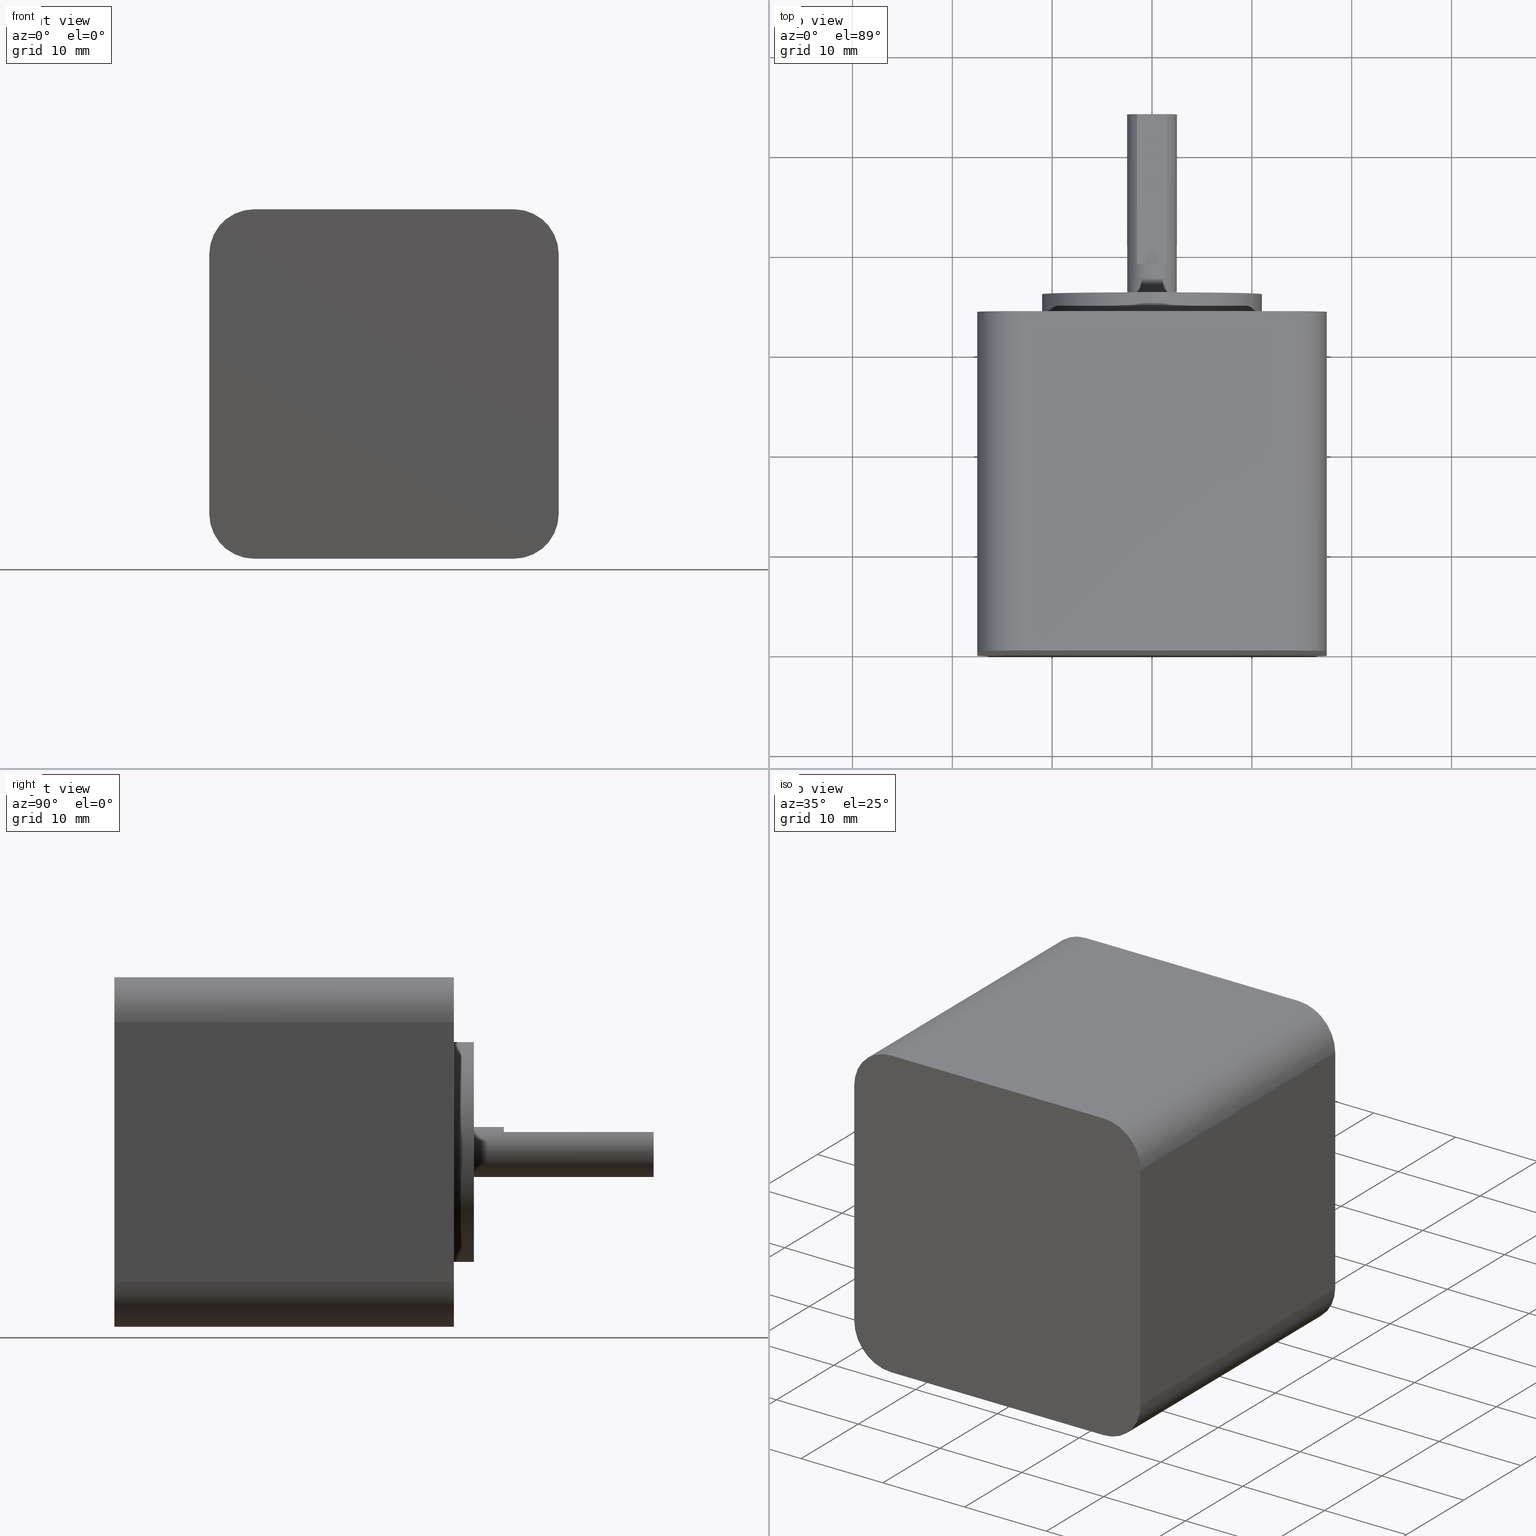
[diagram: canonical four-view strip — front | top / right | iso, engineering-drawing reading convention]
A machine part, canonical four-view strip (front | top / right | iso — engineering-drawing reading convention). The complete STEP part file that produces these views, byte-faithful:
ISO-10303-21;
HEADER;
FILE_DESCRIPTION (( 'STEP AP214' ),
    '1' );
FILE_NAME ('35HS34-D0520-001.STEP',
    '2020-02-15T08:21:02',
    ( '' ),
    ( '' ),
    'SwSTEP 2.0',
    'SolidWorks 2014',
    '' );
FILE_SCHEMA (( 'AUTOMOTIVE_DESIGN' ));
ENDSEC;

DATA;
#1 = LINE ( 'NONE', #76, #488 ) ;
#2 = CARTESIAN_POINT ( 'NONE',  ( -13.00000000000000000, 31.00000000000000400, 11.50000000000000000 ) ) ;
#3 = ORIENTED_EDGE ( 'NONE', *, *, #348, .F. ) ;
#4 = CIRCLE ( 'NONE', #251, 1.499999999999999600 ) ;
#5 = DIRECTION ( 'NONE',  ( 9.912705577010325500E-017, 0.0000000000000000000, 1.000000000000000000 ) ) ;
#6 = ORIENTED_EDGE ( 'NONE', *, *, #419, .F. ) ;
#7 = EDGE_CURVE ( 'NONE', #676, #91, #157, .T. ) ;
#8 = CARTESIAN_POINT ( 'NONE',  ( 0.0000000000000000000, 36.00000000000000700, 0.0000000000000000000 ) ) ;
#9 = ADVANCED_FACE ( 'NONE', ( #554, #649, #447, #757, #511, #327 ), #320, .T. ) ;
#10 = CARTESIAN_POINT ( 'NONE',  ( 0.0000000000000000000, 36.00000000000000700, 0.0000000000000000000 ) ) ;
#11 = AXIS2_PLACEMENT_3D ( 'NONE', #783, #169, #711 ) ;
#12 = CARTESIAN_POINT ( 'NONE',  ( -17.49999999999999600, 0.0000000000000000000, 12.99999999999999800 ) ) ;
#13 = ORIENTED_EDGE ( 'NONE', *, *, #211, .F. ) ;
#14 = ORIENTED_EDGE ( 'NONE', *, *, #826, .F. ) ;
#15 = ORIENTED_EDGE ( 'NONE', *, *, #111, .T. ) ;
#16 = ORIENTED_EDGE ( 'NONE', *, *, #667, .F. ) ;
#17 = CARTESIAN_POINT ( 'NONE',  ( -1.500000000000000200, 39.00000000000000700, 2.000000000000000000 ) ) ;
#18 = DIRECTION ( 'NONE',  ( -0.0000000000000000000, 1.000000000000000000, -0.0000000000000000000 ) ) ;
#19 = CARTESIAN_POINT ( 'NONE',  ( 0.0000000000000000000, 54.00000000000000700, 0.0000000000000000000 ) ) ;
#20 = AXIS2_PLACEMENT_3D ( 'NONE', #44, #506, #170 ) ;
#21 = ADVANCED_FACE ( 'NONE', ( #529 ), #387, .T. ) ;
#22 = DIRECTION ( 'NONE',  ( -0.0000000000000000000, 1.000000000000000000, -0.0000000000000000000 ) ) ;
#23 = CIRCLE ( 'NONE', #867, 4.500000000000002700 ) ;
#24 = VERTEX_POINT ( 'NONE', #122 ) ;
#25 = FACE_OUTER_BOUND ( 'NONE', #673, .T. ) ;
#26 = LINE ( 'NONE', #698, #265 ) ;
#27 = EDGE_LOOP ( 'NONE', ( #317, #829 ) ) ;
#28 = DIRECTION ( 'NONE',  ( -1.000000000000000000, 0.0000000000000000000, 2.891205793294677300E-016 ) ) ;
#29 = AXIS2_PLACEMENT_3D ( 'NONE', #549, #280, #828 ) ;
#30 = CARTESIAN_POINT ( 'NONE',  ( -13.00000000000000000, 31.00000000000000400, 13.00000000000000000 ) ) ;
#31 = ADVANCED_FACE ( 'NONE', ( #672 ), #858, .T. ) ;
#32 = CARTESIAN_POINT ( 'NONE',  ( -17.50000000000000000, 0.0000000000000000000, -13.00000000000000000 ) ) ;
#33 = CARTESIAN_POINT ( 'NONE',  ( 13.00000000000000000, 31.00000000000000400, -13.00000000000000000 ) ) ;
#34 =( NAMED_UNIT ( * ) SI_UNIT ( $, .STERADIAN. ) SOLID_ANGLE_UNIT ( ) );
#35 =( GEOMETRIC_REPRESENTATION_CONTEXT ( 3 ) GLOBAL_UNCERTAINTY_ASSIGNED_CONTEXT ( ( #701 ) ) GLOBAL_UNIT_ASSIGNED_CONTEXT ( ( #470, #537, #34 ) ) REPRESENTATION_CONTEXT ( 'NONE', 'WORKASPACE' ) );
#36 = VECTOR ( 'NONE', #742, 1000.000000000000000 ) ;
#37 = FACE_OUTER_BOUND ( 'NONE', #607, .T. ) ;
#38 = DIRECTION ( 'NONE',  ( -0.0000000000000000000, -1.000000000000000000, -0.0000000000000000000 ) ) ;
#39 = ORIENTED_EDGE ( 'NONE', *, *, #478, .F. ) ;
#40 = EDGE_LOOP ( 'NONE', ( #778, #592, #640, #13 ) ) ;
#41 = CARTESIAN_POINT ( 'NONE',  ( -13.00000000000000000, 31.00000000000000400, 13.00000000000000000 ) ) ;
#42 = ORIENTED_EDGE ( 'NONE', *, *, #144, .T. ) ;
#43 = EDGE_CURVE ( 'NONE', #798, #214, #426, .T. ) ;
#44 = CARTESIAN_POINT ( 'NONE',  ( 13.00000000000000000, 31.00000000000000400, 13.00000000000000000 ) ) ;
#45 = SURFACE_SIDE_STYLE ('',( #623 ) ) ;
#46 = AXIS2_PLACEMENT_3D ( 'NONE', #299, #781, #290 ) ;
#47 = DIRECTION ( 'NONE',  ( -0.0000000000000000000, 1.000000000000000000, -0.0000000000000000000 ) ) ;
#48 = FACE_OUTER_BOUND ( 'NONE', #735, .T. ) ;
#49 = EDGE_LOOP ( 'NONE', ( #818, #341 ) ) ;
#50 = FACE_OUTER_BOUND ( 'NONE', #860, .T. ) ;
#51 = VECTOR ( 'NONE', #680, 1000.000000000000000 ) ;
#52 = EDGE_LOOP ( 'NONE', ( #164, #577, #843, #234 ) ) ;
#53 = DIRECTION ( 'NONE',  ( 0.0000000000000000000, 0.0000000000000000000, 1.000000000000000000 ) ) ;
#54 = DIRECTION ( 'NONE',  ( -0.0000000000000000000, 1.000000000000000000, -0.0000000000000000000 ) ) ;
#55 = EDGE_CURVE ( 'NONE', #460, #380, #417, .T. ) ;
#56 = CARTESIAN_POINT ( 'NONE',  ( 17.50000000000000000, 0.0000000000000000000, 13.00000000000000000 ) ) ;
#57 = EDGE_CURVE ( 'NONE', #564, #242, #194, .T. ) ;
#58 = EDGE_LOOP ( 'NONE', ( #720, #183, #372, #252, #137, #295 ) ) ;
#59 = CYLINDRICAL_SURFACE ( 'NONE', #74, 4.500000000000002700 ) ;
#60 = DIRECTION ( 'NONE',  ( -0.0000000000000000000, -1.000000000000000000, 0.0000000000000000000 ) ) ;
#61 = ORIENTED_EDGE ( 'NONE', *, *, #842, .F. ) ;
#62 = VERTEX_POINT ( 'NONE', #748 ) ;
#63 = EDGE_LOOP ( 'NONE', ( #316, #627, #185, #614 ) ) ;
#64 = CARTESIAN_POINT ( 'NONE',  ( 0.0000000000000000000, 34.00000000000000000, 0.0000000000000000000 ) ) ;
#65 = AXIS2_PLACEMENT_3D ( 'NONE', #260, #81, #821 ) ;
#66 = AXIS2_PLACEMENT_3D ( 'NONE', #181, #864, #650 ) ;
#67 = DIRECTION ( 'NONE',  ( -0.0000000000000000000, 1.000000000000000000, -0.0000000000000000000 ) ) ;
#68 = CARTESIAN_POINT ( 'NONE',  ( -17.50000000000000000, 0.0000000000000000000, -17.50000000000000000 ) ) ;
#69 = DIRECTION ( 'NONE',  ( -0.0000000000000000000, -1.000000000000000000, -0.0000000000000000000 ) ) ;
#70 = DIRECTION ( 'NONE',  ( 0.0000000000000000000, 1.000000000000000000, 0.0000000000000000000 ) ) ;
#71 = CIRCLE ( 'NONE', #29, 1.499999999999999600 ) ;
#72 = ORIENTED_EDGE ( 'NONE', *, *, #799, .F. ) ;
#73 = CIRCLE ( 'NONE', #804, 1.499999999999999600 ) ;
#74 = AXIS2_PLACEMENT_3D ( 'NONE', #121, #723, #714 ) ;
#75 = VERTEX_POINT ( 'NONE', #609 ) ;
#76 = CARTESIAN_POINT ( 'NONE',  ( 17.49999999999999600, 34.00000000000000000, -17.50000000000000000 ) ) ;
#77 = PLANE ( 'NONE',  #256 ) ;
#78 = DIRECTION ( 'NONE',  ( 0.0000000000000000000, 0.0000000000000000000, 1.000000000000000000 ) ) ;
#79 = AXIS2_PLACEMENT_3D ( 'NONE', #257, #793, #668 ) ;
#80 = DIRECTION ( 'NONE',  ( -0.0000000000000000000, 1.000000000000000000, -0.0000000000000000000 ) ) ;
#81 = DIRECTION ( 'NONE',  ( 0.0000000000000000000, 1.000000000000000000, 0.0000000000000000000 ) ) ;
#82 = VERTEX_POINT ( 'NONE', #200 ) ;
#83 = CYLINDRICAL_SURFACE ( 'NONE', #558, 1.500000000000003100 ) ;
#84 = ORIENTED_EDGE ( 'NONE', *, *, #704, .T. ) ;
#85 = ADVANCED_FACE ( 'NONE', ( #732, #719 ), #77, .T. ) ;
#86 = SURFACE_STYLE_FILL_AREA ( #424 ) ;
#87 = ORIENTED_EDGE ( 'NONE', *, *, #667, .T. ) ;
#88 = CARTESIAN_POINT ( 'NONE',  ( 13.00000000000000000, 31.00000000000000400, -13.00000000000000000 ) ) ;
#89 = DIRECTION ( 'NONE',  ( 0.0000000000000000000, 0.0000000000000000000, 1.000000000000000000 ) ) ;
#90 = VECTOR ( 'NONE', #671, 1000.000000000000000 ) ;
#91 = VERTEX_POINT ( 'NONE', #329 ) ;
#92 = LINE ( 'NONE', #545, #51 ) ;
#93 = PLANE ( 'NONE',  #496 ) ;
#94 = EDGE_LOOP ( 'NONE', ( #114, #326 ) ) ;
#95 =( GEOMETRIC_REPRESENTATION_CONTEXT ( 3 ) GLOBAL_UNCERTAINTY_ASSIGNED_CONTEXT ( ( #539 ) ) GLOBAL_UNIT_ASSIGNED_CONTEXT ( ( #731, #724, #453 ) ) REPRESENTATION_CONTEXT ( 'NONE', 'WORKASPACE' ) );
#96 = DIRECTION ( 'NONE',  ( 0.0000000000000000000, 1.000000000000000000, 0.0000000000000000000 ) ) ;
#97 = CARTESIAN_POINT ( 'NONE',  ( -13.00000000000000000, 0.0000000000000000000, 13.00000000000000000 ) ) ;
#98 = EDGE_CURVE ( 'NONE', #798, #101, #595, .T. ) ;
#99 = AXIS2_PLACEMENT_3D ( 'NONE', #832, #540, #741 ) ;
#100 = CARTESIAN_POINT ( 'NONE',  ( -13.00000000000000000, 31.00000000000000400, 13.00000000000000000 ) ) ;
#101 = VERTEX_POINT ( 'NONE', #681 ) ;
#102 = DIRECTION ( 'NONE',  ( -1.982541115402065100E-016, -0.0000000000000000000, -1.000000000000000000 ) ) ;
#103 = ORIENTED_EDGE ( 'NONE', *, *, #791, .F. ) ;
#104 = EDGE_CURVE ( 'NONE', #282, #533, #855, .T. ) ;
#105 = ORIENTED_EDGE ( 'NONE', *, *, #472, .T. ) ;
#106 = AXIS2_PLACEMENT_3D ( 'NONE', #498, #634, #437 ) ;
#107 = DIRECTION ( 'NONE',  ( 0.0000000000000000000, 1.000000000000000000, 0.0000000000000000000 ) ) ;
#108 = CARTESIAN_POINT ( 'NONE',  ( 0.0000000000000000000, 36.00000000000000700, 0.0000000000000000000 ) ) ;
#109 =( GEOMETRIC_REPRESENTATION_CONTEXT ( 3 ) GLOBAL_UNCERTAINTY_ASSIGNED_CONTEXT ( ( #763 ) ) GLOBAL_UNIT_ASSIGNED_CONTEXT ( ( #639, #229, #866 ) ) REPRESENTATION_CONTEXT ( 'NONE', 'WORKASPACE' ) );
#110 = DIRECTION ( 'NONE',  ( -0.0000000000000000000, -1.000000000000000000, -0.0000000000000000000 ) ) ;
#111 = EDGE_CURVE ( 'NONE', #766, #718, #550, .T. ) ;
#112 = ORIENTED_EDGE ( 'NONE', *, *, #132, .F. ) ;
#113 = FILL_AREA_STYLE ('',( #853 ) ) ;
#114 = ORIENTED_EDGE ( 'NONE', *, *, #613, .T. ) ;
#115 = CIRCLE ( 'NONE', #301, 1.499999999999999600 ) ;
#116 = LINE ( 'NONE', #489, #182 ) ;
#117 = CARTESIAN_POINT ( 'NONE',  ( 0.0000000000000000000, 39.00000000000000700, 0.0000000000000000000 ) ) ;
#118 = EDGE_CURVE ( 'NONE', #655, #452, #576, .T. ) ;
#119 = AXIS2_PLACEMENT_3D ( 'NONE', #856, #581, #517 ) ;
#120 = CARTESIAN_POINT ( 'NONE',  ( 1.347111479062088400E-015, 34.00000000000000000, 11.00000000000000000 ) ) ;
#121 = CARTESIAN_POINT ( 'NONE',  ( -13.00000000000000000, 0.0000000000000000000, 13.00000000000000000 ) ) ;
#122 = CARTESIAN_POINT ( 'NONE',  ( 13.00000000000000000, 34.00000000000000000, -14.49999999999999800 ) ) ;
#123 = AXIS2_PLACEMENT_3D ( 'NONE', #761, #567, #162 ) ;
#124 = EDGE_CURVE ( 'NONE', #450, #676, #304, .T. ) ;
#125 = DIRECTION ( 'NONE',  ( -0.0000000000000000000, -1.000000000000000000, -0.0000000000000000000 ) ) ;
#126 = VERTEX_POINT ( 'NONE', #888 ) ;
#127 = FACE_OUTER_BOUND ( 'NONE', #596, .T. ) ;
#128 = ORIENTED_EDGE ( 'NONE', *, *, #749, .T. ) ;
#129 = ORIENTED_EDGE ( 'NONE', *, *, #582, .F. ) ;
#130 = CARTESIAN_POINT ( 'NONE',  ( 0.0000000000000000000, 36.00000000000000700, -2.500000000000000000 ) ) ;
#131 = DIRECTION ( 'NONE',  ( 0.0000000000000000000, 0.0000000000000000000, 1.000000000000000000 ) ) ;
#132 = EDGE_CURVE ( 'NONE', #306, #242, #553, .T. ) ;
#133 = PRODUCT_RELATED_PRODUCT_CATEGORY ( 'part', '', ( #887 ) ) ;
#134 = EDGE_LOOP ( 'NONE', ( #6, #87, #438, #868 ) ) ;
#135 = FACE_OUTER_BOUND ( 'NONE', #63, .T. ) ;
#136 = DIRECTION ( 'NONE',  ( -0.0000000000000000000, -1.000000000000000000, -0.0000000000000000000 ) ) ;
#137 = ORIENTED_EDGE ( 'NONE', *, *, #321, .F. ) ;
#138 = ORIENTED_EDGE ( 'NONE', *, *, #271, .T. ) ;
#139 = CIRCLE ( 'NONE', #408, 1.500000000000003100 ) ;
#140 = DIRECTION ( 'NONE',  ( -0.0000000000000000000, 1.000000000000000000, -0.0000000000000000000 ) ) ;
#141 = ORIENTED_EDGE ( 'NONE', *, *, #646, .F. ) ;
#142 = AXIS2_PLACEMENT_3D ( 'NONE', #342, #136, #752 ) ;
#143 = CARTESIAN_POINT ( 'NONE',  ( 13.00000000000000000, 31.00000000000000400, 14.49999999999999800 ) ) ;
#144 = EDGE_CURVE ( 'NONE', #126, #544, #353, .T. ) ;
#145 = EDGE_LOOP ( 'NONE', ( #407, #820 ) ) ;
#146 = ORIENTED_EDGE ( 'NONE', *, *, #753, .F. ) ;
#147 = CARTESIAN_POINT ( 'NONE',  ( 0.0000000000000000000, 0.0000000000000000000, 0.0000000000000000000 ) ) ;
#148 = VERTEX_POINT ( 'NONE', #143 ) ;
#149 = EDGE_CURVE ( 'NONE', #655, #533, #786, .T. ) ;
#150 = MANIFOLD_SOLID_BREP ( '�г�-����3', #310 ) ;
#151 = AXIS2_PLACEMENT_3D ( 'NONE', #504, #502, #28 ) ;
#152 = EDGE_CURVE ( 'NONE', #380, #460, #243, .T. ) ;
#153 = VERTEX_POINT ( 'NONE', #885 ) ;
#154 = CIRCLE ( 'NONE', #367, 1.499999999999999600 ) ;
#155 = AXIS2_PLACEMENT_3D ( 'NONE', #670, #125, #131 ) ;
#156 = VERTEX_POINT ( 'NONE', #777 ) ;
#157 = LINE ( 'NONE', #527, #716 ) ;
#158 = LINE ( 'NONE', #815, #219 ) ;
#159 = ORIENTED_EDGE ( 'NONE', *, *, #505, .T. ) ;
#160 = CARTESIAN_POINT ( 'NONE',  ( 13.00000000000000000, 34.00000000000000000, -13.00000000000000000 ) ) ;
#161 = CARTESIAN_POINT ( 'NONE',  ( 0.0000000000000000000, 34.00000000000000000, 0.0000000000000000000 ) ) ;
#162 = DIRECTION ( 'NONE',  ( 0.0000000000000000000, 0.0000000000000000000, 1.000000000000000000 ) ) ;
#163 = DIRECTION ( 'NONE',  ( 0.0000000000000000000, 1.000000000000000000, 0.0000000000000000000 ) ) ;
#164 = ORIENTED_EDGE ( 'NONE', *, *, #149, .T. ) ;
#165 = CIRCLE ( 'NONE', #889, 1.499999999999999600 ) ;
#166 = DIRECTION ( 'NONE',  ( -0.0000000000000000000, -1.000000000000000000, -0.0000000000000000000 ) ) ;
#167 = EDGE_LOOP ( 'NONE', ( #363, #414, #275, #603 ) ) ;
#168 = AXIS2_PLACEMENT_3D ( 'NONE', #851, #236, #775 ) ;
#169 = DIRECTION ( 'NONE',  ( 0.0000000000000000000, 1.000000000000000000, 0.0000000000000000000 ) ) ;
#170 = DIRECTION ( 'NONE',  ( 0.0000000000000000000, 0.0000000000000000000, 1.000000000000000000 ) ) ;
#171 = STYLED_ITEM ( 'NONE', ( #350 ), #150 ) ;
#172 = ORIENTED_EDGE ( 'NONE', *, *, #657, .T. ) ;
#173 = CARTESIAN_POINT ( 'NONE',  ( 0.0000000000000000000, 36.00000000000000700, 0.0000000000000000000 ) ) ;
#174 = LINE ( 'NONE', #388, #415 ) ;
#175 = VERTEX_POINT ( 'NONE', #397 ) ;
#176 = CYLINDRICAL_SURFACE ( 'NONE', #413, 1.499999999999999600 ) ;
#177 = LINE ( 'NONE', #409, #626 ) ;
#178 = EDGE_LOOP ( 'NONE', ( #141, #231, #746, #697 ) ) ;
#179 = CARTESIAN_POINT ( 'NONE',  ( -13.00000000000000000, 34.00000000000000000, -13.00000000000000000 ) ) ;
#180 = AXIS2_PLACEMENT_3D ( 'NONE', #246, #53, #446 ) ;
#181 = CARTESIAN_POINT ( 'NONE',  ( 13.00000000000000000, 0.0000000000000000000, 13.00000000000000000 ) ) ;
#182 = VECTOR ( 'NONE', #616, 1000.000000000000000 ) ;
#183 = ORIENTED_EDGE ( 'NONE', *, *, #186, .T. ) ;
#184 = LINE ( 'NONE', #734, #586 ) ;
#185 = ORIENTED_EDGE ( 'NONE', *, *, #211, .T. ) ;
#186 = EDGE_CURVE ( 'NONE', #126, #82, #429, .T. ) ;
#187 = DIRECTION ( 'NONE',  ( 1.000000000000000000, 0.0000000000000000000, 0.0000000000000000000 ) ) ;
#188 = DIRECTION ( 'NONE',  ( -0.0000000000000000000, 1.000000000000000000, -0.0000000000000000000 ) ) ;
#189 = EDGE_CURVE ( 'NONE', #416, #282, #625, .T. ) ;
#190 = CARTESIAN_POINT ( 'NONE',  ( 13.00000000000000000, 0.0000000000000000000, 13.00000000000000000 ) ) ;
#191 = ORIENTED_EDGE ( 'NONE', *, *, #433, .T. ) ;
#192 = LINE ( 'NONE', #56, #593 ) ;
#193 = ORIENTED_EDGE ( 'NONE', *, *, #582, .T. ) ;
#194 = LINE ( 'NONE', #535, #36 ) ;
#195 = ORIENTED_EDGE ( 'NONE', *, *, #57, .T. ) ;
#196 = DIRECTION ( 'NONE',  ( 0.0000000000000000000, 1.000000000000000000, 0.0000000000000000000 ) ) ;
#197 = AXIS2_PLACEMENT_3D ( 'NONE', #386, #802, #659 ) ;
#198 = SURFACE_SIDE_STYLE ('',( #86 ) ) ;
#199 = DIRECTION ( 'NONE',  ( 0.0000000000000000000, 0.0000000000000000000, 1.000000000000000000 ) ) ;
#200 = CARTESIAN_POINT ( 'NONE',  ( 3.061616997868383100E-016, 36.00000000000000700, 2.500000000000000000 ) ) ;
#201 = AXIS2_PLACEMENT_3D ( 'NONE', #209, #70, #751 ) ;
#202 = FACE_OUTER_BOUND ( 'NONE', #604, .T. ) ;
#203 = DIRECTION ( 'NONE',  ( 0.0000000000000000000, -0.0000000000000000000, 1.000000000000000000 ) ) ;
#204 = EDGE_LOOP ( 'NONE', ( #255, #871, #3, #159 ) ) ;
#205 = LINE ( 'NONE', #32, #308 ) ;
#206 = DIRECTION ( 'NONE',  ( -0.0000000000000000000, 1.000000000000000000, -0.0000000000000000000 ) ) ;
#207 = ORIENTED_EDGE ( 'NONE', *, *, #189, .F. ) ;
#208 = CARTESIAN_POINT ( 'NONE',  ( -13.00000000000000000, 34.00000000000000000, -13.00000000000000000 ) ) ;
#209 = CARTESIAN_POINT ( 'NONE',  ( 0.0000000000000000000, 39.00000000000000700, 0.0000000000000000000 ) ) ;
#210 = AXIS2_PLACEMENT_3D ( 'NONE', #97, #443, #439 ) ;
#211 = EDGE_CURVE ( 'NONE', #62, #460, #653, .T. ) ;
#212 = DIRECTION ( 'NONE',  ( -0.0000000000000000000, -1.000000000000000000, -0.0000000000000000000 ) ) ;
#213 = CARTESIAN_POINT ( 'NONE',  ( 0.0000000000000000000, 54.00000000000000700, -2.500000000000000000 ) ) ;
#214 = VERTEX_POINT ( 'NONE', #764 ) ;
#215 = ORIENTED_EDGE ( 'NONE', *, *, #849, .T. ) ;
#216 = VERTEX_POINT ( 'NONE', #630 ) ;
#217 = DIRECTION ( 'NONE',  ( 0.0000000000000000000, 1.000000000000000000, 0.0000000000000000000 ) ) ;
#218 = CARTESIAN_POINT ( 'NONE',  ( 13.00000000000000000, 31.00000000000000400, -11.50000000000000000 ) ) ;
#219 = VECTOR ( 'NONE', #480, 1000.000000000000000 ) ;
#220 = ORIENTED_EDGE ( 'NONE', *, *, #98, .T. ) ;
#221 = VECTOR ( 'NONE', #503, 1000.000000000000000 ) ;
#222 = FACE_OUTER_BOUND ( 'NONE', #58, .T. ) ;
#223 = ORIENTED_EDGE ( 'NONE', *, *, #55, .F. ) ;
#224 = ADVANCED_FACE ( 'NONE', ( #381 ), #466, .T. ) ;
#225 = DIRECTION ( 'NONE',  ( -0.0000000000000000000, -1.000000000000000000, -0.0000000000000000000 ) ) ;
#226 = EDGE_CURVE ( 'NONE', #153, #754, #115, .T. ) ;
#227 = CARTESIAN_POINT ( 'NONE',  ( 13.00000000000000000, 31.00000000000000400, -13.00000000000000000 ) ) ;
#228 = ADVANCED_FACE ( 'NONE', ( #810 ), #635, .T. ) ;
#229 =( NAMED_UNIT ( * ) PLANE_ANGLE_UNIT ( ) SI_UNIT ( $, .RADIAN. ) );
#230 = DIRECTION ( 'NONE',  ( 0.0000000000000000000, 0.0000000000000000000, 1.000000000000000000 ) ) ;
#231 = ORIENTED_EDGE ( 'NONE', *, *, #505, .F. ) ;
#232 = FACE_OUTER_BOUND ( 'NONE', #178, .T. ) ;
#233 = ORIENTED_EDGE ( 'NONE', *, *, #525, .F. ) ;
#234 = ORIENTED_EDGE ( 'NONE', *, *, #398, .T. ) ;
#235 = CARTESIAN_POINT ( 'NONE',  ( 0.0000000000000000000, 54.00000000000000700, 0.0000000000000000000 ) ) ;
#236 = DIRECTION ( 'NONE',  ( 0.0000000000000000000, 1.000000000000000000, 0.0000000000000000000 ) ) ;
#237 = AXIS2_PLACEMENT_3D ( 'NONE', #8, #212, #344 ) ;
#238 = DIRECTION ( 'NONE',  ( -0.0000000000000000000, 1.000000000000000000, -0.0000000000000000000 ) ) ;
#239 = CARTESIAN_POINT ( 'NONE',  ( -17.50000000000000000, 34.00000000000000000, -17.50000000000000000 ) ) ;
#240 = LINE ( 'NONE', #2, #541 ) ;
#241 = CIRCLE ( 'NONE', #291, 4.500000000000002700 ) ;
#242 = VERTEX_POINT ( 'NONE', #357 ) ;
#243 = CIRCLE ( 'NONE', #519, 11.00000000000000000 ) ;
#244 = CIRCLE ( 'NONE', #11, 1.499999999999999600 ) ;
#245 = ORIENTED_EDGE ( 'NONE', *, *, #419, .T. ) ;
#246 = CARTESIAN_POINT ( 'NONE',  ( 0.0000000000000000000, 0.0000000000000000000, 0.0000000000000000000 ) ) ;
#247 = AXIS2_PLACEMENT_3D ( 'NONE', #513, #865, #722 ) ;
#248 = CARTESIAN_POINT ( 'NONE',  ( 17.50000000000000000, 34.00000000000000000, 13.00000000000000000 ) ) ;
#249 = CARTESIAN_POINT ( 'NONE',  ( 13.00000000000000000, 31.00000000000000400, 13.00000000000000000 ) ) ;
#250 = CARTESIAN_POINT ( 'NONE',  ( 0.0000000000000000000, 34.00000000000000000, -11.00000000000000000 ) ) ;
#251 = AXIS2_PLACEMENT_3D ( 'NONE', #88, #217, #769 ) ;
#252 = ORIENTED_EDGE ( 'NONE', *, *, #610, .F. ) ;
#253 = ORIENTED_EDGE ( 'NONE', *, *, #383, .T. ) ;
#254 = COLOUR_RGB ( '',1.000000000000000000, 1.000000000000000000, 1.000000000000000000 ) ;
#255 = ORIENTED_EDGE ( 'NONE', *, *, #547, .T. ) ;
#256 = AXIS2_PLACEMENT_3D ( 'NONE', #601, #196, #334 ) ;
#257 = CARTESIAN_POINT ( 'NONE',  ( 13.00000000000000000, 34.00000000000000000, 13.00000000000000000 ) ) ;
#258 = DIRECTION ( 'NONE',  ( -0.0000000000000000000, -1.000000000000000000, 0.0000000000000000000 ) ) ;
#259 = PRODUCT_DEFINITION ( 'δ֪', '', #366, #314 ) ;
#260 = CARTESIAN_POINT ( 'NONE',  ( -13.00000000000000000, 34.00000000000000000, 13.00000000000000000 ) ) ;
#261 = EDGE_LOOP ( 'NONE', ( #307, #880, #191, #532 ) ) ;
#262 = FACE_OUTER_BOUND ( 'NONE', #779, .T. ) ;
#263 = PRESENTATION_STYLE_ASSIGNMENT (( #312 ) ) ;
#264 = EDGE_LOOP ( 'NONE', ( #112, #233, #371, #195 ) ) ;
#265 = VECTOR ( 'NONE', #432, 1000.000000000000000 ) ;
#266 = VERTEX_POINT ( 'NONE', #850 ) ;
#267 = AXIS2_PLACEMENT_3D ( 'NONE', #190, #396, #461 ) ;
#268 = CARTESIAN_POINT ( 'NONE',  ( 13.00000000000000000, 31.00000000000000400, 13.00000000000000000 ) ) ;
#269 = CARTESIAN_POINT ( 'NONE',  ( -17.50000000000000000, 34.00000000000000000, -17.50000000000000000 ) ) ;
#270 = CARTESIAN_POINT ( 'NONE',  ( -17.49999999999999600, 34.00000000000000000, 17.50000000000000000 ) ) ;
#271 = EDGE_CURVE ( 'NONE', #484, #91, #404, .T. ) ;
#272 = ORIENTED_EDGE ( 'NONE', *, *, #610, .T. ) ;
#273 = CIRCLE ( 'NONE', #106, 1.499999999999999600 ) ;
#274 = ORIENTED_EDGE ( 'NONE', *, *, #226, .T. ) ;
#275 = ORIENTED_EDGE ( 'NONE', *, *, #823, .F. ) ;
#276 = DIRECTION ( 'NONE',  ( -0.0000000000000000000, 1.000000000000000000, -0.0000000000000000000 ) ) ;
#277 = EDGE_CURVE ( 'NONE', #664, #216, #73, .T. ) ;
#278 = DIRECTION ( 'NONE',  ( -1.982541115402065100E-016, -0.0000000000000000000, -1.000000000000000000 ) ) ;
#279 = ADVANCED_FACE ( 'NONE', ( #25 ), #288, .T. ) ;
#280 = DIRECTION ( 'NONE',  ( 0.0000000000000000000, 1.000000000000000000, 0.0000000000000000000 ) ) ;
#281 = AXIS2_PLACEMENT_3D ( 'NONE', #492, #425, #346 ) ;
#282 = VERTEX_POINT ( 'NONE', #368 ) ;
#283 = CIRCLE ( 'NONE', #65, 1.499999999999999600 ) ;
#284 = CARTESIAN_POINT ( 'NONE',  ( 13.00000000000000000, 34.00000000000000000, 11.50000000000000000 ) ) ;
#285 = ORIENTED_EDGE ( 'NONE', *, *, #186, .F. ) ;
#286 = AXIS2_PLACEMENT_3D ( 'NONE', #239, #862, #645 ) ;
#287 = DIRECTION ( 'NONE',  ( -0.0000000000000000000, -1.000000000000000000, -0.0000000000000000000 ) ) ;
#288 = PLANE ( 'NONE',  #395 ) ;
#289 = ADVANCED_FACE ( 'NONE', ( #585 ), #565, .T. ) ;
#290 = DIRECTION ( 'NONE',  ( 0.0000000000000000000, 0.0000000000000000000, -1.000000000000000000 ) ) ;
#291 = AXIS2_PLACEMENT_3D ( 'NONE', #572, #166, #374 ) ;
#292 = EDGE_LOOP ( 'NONE', ( #223, #674 ) ) ;
#293 = CARTESIAN_POINT ( 'NONE',  ( -13.00000000000000000, 34.00000000000000000, 17.50000000000000000 ) ) ;
#294 = ORIENTED_EDGE ( 'NONE', *, *, #678, .T. ) ;
#295 = ORIENTED_EDGE ( 'NONE', *, *, #678, .F. ) ;
#296 = DIRECTION ( 'NONE',  ( -0.0000000000000000000, 1.000000000000000000, -0.0000000000000000000 ) ) ;
#297 = DIRECTION ( 'NONE',  ( 0.0000000000000000000, 1.000000000000000000, 0.0000000000000000000 ) ) ;
#298 = PRODUCT_DEFINITION_SHAPE ( 'NONE', 'NONE',  #259 ) ;
#299 = CARTESIAN_POINT ( 'NONE',  ( -13.00000000000000000, 34.00000000000000000, 13.00000000000000000 ) ) ;
#300 = DIRECTION ( 'NONE',  ( 0.0000000000000000000, 0.0000000000000000000, 1.000000000000000000 ) ) ;
#301 = AXIS2_PLACEMENT_3D ( 'NONE', #713, #570, #497 ) ;
#302 = ADVANCED_FACE ( 'NONE', ( #50 ), #176, .F. ) ;
#303 = DIRECTION ( 'NONE',  ( 0.0000000000000000000, 0.0000000000000000000, 1.000000000000000000 ) ) ;
#304 = LINE ( 'NONE', #68, #463 ) ;
#305 = LINE ( 'NONE', #319, #351 ) ;
#306 = VERTEX_POINT ( 'NONE', #293 ) ;
#307 = ORIENTED_EDGE ( 'NONE', *, *, #590, .F. ) ;
#308 = VECTOR ( 'NONE', #296, 1000.000000000000000 ) ;
#309 = CARTESIAN_POINT ( 'NONE',  ( -13.00000000000000000, 31.00000000000000400, 14.49999999999999800 ) ) ;
#310 = CLOSED_SHELL ( 'NONE', ( #579, #618, #347, #687, #302, #571, #85, #9, #495, #411, #629, #546, #569, #421, #289, #750, #715, #839, #279, #612, #21, #689, #555, #345, #31, #844, #224, #228, #827, #343 ) ) ;
#311 = DIRECTION ( 'NONE',  ( 0.0000000000000000000, 1.000000000000000000, 0.0000000000000000000 ) ) ;
#312 = SURFACE_STYLE_USAGE ( .BOTH. , #45 ) ;
#313 = AXIS2_PLACEMENT_3D ( 'NONE', #412, #80, #78 ) ;
#314 = PRODUCT_DEFINITION_CONTEXT ( 'detailed design', #514, 'design' ) ;
#315 = ORIENTED_EDGE ( 'NONE', *, *, #812, .F. ) ;
#316 = ORIENTED_EDGE ( 'NONE', *, *, #792, .F. ) ;
#317 = ORIENTED_EDGE ( 'NONE', *, *, #619, .F. ) ;
#318 = AXIS2_PLACEMENT_3D ( 'NONE', #179, #648, #520 ) ;
#319 = CARTESIAN_POINT ( 'NONE',  ( -17.49999999999999600, 0.0000000000000000000, 17.50000000000000000 ) ) ;
#320 = PLANE ( 'NONE',  #709 ) ;
#321 = EDGE_CURVE ( 'NONE', #156, #766, #360, .T. ) ;
#322 = CARTESIAN_POINT ( 'NONE',  ( 13.00000000000000000, 34.00000000000000000, 13.00000000000000000 ) ) ;
#323 = ORIENTED_EDGE ( 'NONE', *, *, #597, .F. ) ;
#324 = CIRCLE ( 'NONE', #247, 1.500000000000003100 ) ;
#325 = CARTESIAN_POINT ( 'NONE',  ( -17.50000000000000000, 34.00000000000000000, -13.00000000000000000 ) ) ;
#326 = ORIENTED_EDGE ( 'NONE', *, *, #784, .T. ) ;
#327 = FACE_BOUND ( 'NONE', #292, .T. ) ;
#328 = CYLINDRICAL_SURFACE ( 'NONE', #848, 1.499999999999999600 ) ;
#329 = CARTESIAN_POINT ( 'NONE',  ( -17.49999999999999600, 34.00000000000000000, 13.00000000000000000 ) ) ;
#330 = ORIENTED_EDGE ( 'NONE', *, *, #590, .T. ) ;
#331 = DIRECTION ( 'NONE',  ( -1.000000000000000000, 0.0000000000000000000, -0.0000000000000000000 ) ) ;
#332 = SURFACE_STYLE_USAGE ( .BOTH. , #198 ) ;
#333 = DIRECTION ( 'NONE',  ( 0.0000000000000000000, 0.0000000000000000000, 1.000000000000000000 ) ) ;
#334 = DIRECTION ( 'NONE',  ( 0.0000000000000000000, -0.0000000000000000000, 1.000000000000000000 ) ) ;
#335 = EDGE_CURVE ( 'NONE', #82, #465, #744, .T. ) ;
#336 = DIRECTION ( 'NONE',  ( -1.000000000000000000, -0.0000000000000000000, -0.0000000000000000000 ) ) ;
#337 = EDGE_LOOP ( 'NONE', ( #193, #617, #14, #845 ) ) ;
#338 = VECTOR ( 'NONE', #102, 1000.000000000000000 ) ;
#339 = CIRCLE ( 'NONE', #119, 4.500000000000002700 ) ;
#340 = CIRCLE ( 'NONE', #477, 4.500000000000002700 ) ;
#341 = ORIENTED_EDGE ( 'NONE', *, *, #335, .T. ) ;
#342 = CARTESIAN_POINT ( 'NONE',  ( 0.0000000000000000000, 54.00000000000000700, 0.0000000000000000000 ) ) ;
#343 = ADVANCED_FACE ( 'NONE', ( #37 ), #852, .T. ) ;
#344 = DIRECTION ( 'NONE',  ( 0.0000000000000000000, 0.0000000000000000000, -1.000000000000000000 ) ) ;
#345 = ADVANCED_FACE ( 'NONE', ( #819 ), #59, .T. ) ;
#346 = DIRECTION ( 'NONE',  ( 0.0000000000000000000, 0.0000000000000000000, 1.000000000000000000 ) ) ;
#347 = ADVANCED_FACE ( 'NONE', ( #622 ), #808, .F. ) ;
#348 = EDGE_CURVE ( 'NONE', #416, #564, #755, .T. ) ;
#349 = DIRECTION ( 'NONE',  ( 0.0000000000000000000, 0.0000000000000000000, 1.000000000000000000 ) ) ;
#350 = PRESENTATION_STYLE_ASSIGNMENT (( #332 ) ) ;
#351 = VECTOR ( 'NONE', #187, 1000.000000000000000 ) ;
#352 = EDGE_LOOP ( 'NONE', ( #285, #710, #522, #391, #272, #584 ) ) ;
#353 = CIRCLE ( 'NONE', #201, 2.500000000000000000 ) ;
#354 = CYLINDRICAL_SURFACE ( 'NONE', #682, 1.499999999999999600 ) ;
#355 = ORIENTED_EDGE ( 'NONE', *, *, #826, .T. ) ;
#356 = CARTESIAN_POINT ( 'NONE',  ( -13.00000000000000000, 31.00000000000000400, 13.00000000000000000 ) ) ;
#357 = CARTESIAN_POINT ( 'NONE',  ( 13.00000000000000000, 34.00000000000000000, 17.50000000000000000 ) ) ;
#358 = LINE ( 'NONE', #631, #405 ) ;
#359 = ORIENTED_EDGE ( 'NONE', *, *, #271, .F. ) ;
#360 = CIRCLE ( 'NONE', #566, 2.500000000000000000 ) ;
#361 = FACE_OUTER_BOUND ( 'NONE', #706, .T. ) ;
#362 = CARTESIAN_POINT ( 'NONE',  ( 13.00000000000000000, 34.00000000000000000, 14.49999999999999800 ) ) ;
#363 = ORIENTED_EDGE ( 'NONE', *, *, #842, .T. ) ;
#364 = CARTESIAN_POINT ( 'NONE',  ( -13.00000000000000000, 0.0000000000000000000, 17.50000000000000000 ) ) ;
#365 = DIRECTION ( 'NONE',  ( 0.0000000000000000000, -0.0000000000000000000, 1.000000000000000000 ) ) ;
#366 = PRODUCT_DEFINITION_FORMATION_WITH_SPECIFIED_SOURCE ( '�κ�', '', #887, .NOT_KNOWN. ) ;
#367 = AXIS2_PLACEMENT_3D ( 'NONE', #41, #790, #303 ) ;
#368 = CARTESIAN_POINT ( 'NONE',  ( 17.49999999999999600, 0.0000000000000000000, -13.00000000000000000 ) ) ;
#369 = ORIENTED_EDGE ( 'NONE', *, *, #383, .F. ) ;
#370 = CARTESIAN_POINT ( 'NONE',  ( 13.00000000000000000, 0.0000000000000000000, -17.50000000000000000 ) ) ;
#371 = ORIENTED_EDGE ( 'NONE', *, *, #445, .T. ) ;
#372 = ORIENTED_EDGE ( 'NONE', *, *, #518, .F. ) ;
#373 = ORIENTED_EDGE ( 'NONE', *, *, #348, .T. ) ;
#374 = DIRECTION ( 'NONE',  ( 0.0000000000000000000, 0.0000000000000000000, 1.000000000000000000 ) ) ;
#375 = CARTESIAN_POINT ( 'NONE',  ( -13.00000000000000000, 31.00000000000000400, -13.00000000000000000 ) ) ;
#376 = APPLICATION_PROTOCOL_DEFINITION ( 'draft international standard', 'automotive_design', 1998, #661 ) ;
#377 = STYLED_ITEM ( 'NONE', ( #263 ), #647 ) ;
#378 = EDGE_CURVE ( 'NONE', #857, #214, #508, .T. ) ;
#379 = CIRCLE ( 'NONE', #464, 1.499999999999999600 ) ;
#380 = VERTEX_POINT ( 'NONE', #120 ) ;
#381 = FACE_OUTER_BOUND ( 'NONE', #352, .T. ) ;
#382 = CYLINDRICAL_SURFACE ( 'NONE', #281, 4.500000000000002700 ) ;
#383 = EDGE_CURVE ( 'NONE', #754, #153, #154, .T. ) ;
#384 = DIRECTION ( 'NONE',  ( 0.0000000000000000000, 0.0000000000000000000, 1.000000000000000000 ) ) ;
#385 = ORIENTED_EDGE ( 'NONE', *, *, #547, .F. ) ;
#386 = CARTESIAN_POINT ( 'NONE',  ( -17.50000000000000000, 34.00000000000000000, -17.50000000000000000 ) ) ;
#387 = PLANE ( 'NONE',  #669 ) ;
#388 = CARTESIAN_POINT ( 'NONE',  ( -13.00000000000000000, 0.0000000000000000000, 17.50000000000000000 ) ) ;
#389 = DIRECTION ( 'NONE',  ( -0.0000000000000000000, 1.000000000000000000, -0.0000000000000000000 ) ) ;
#390 = PLANE ( 'NONE',  #729 ) ;
#391 = ORIENTED_EDGE ( 'NONE', *, *, #111, .F. ) ;
#392 = ORIENTED_EDGE ( 'NONE', *, *, #478, .T. ) ;
#393 = VECTOR ( 'NONE', #206, 1000.000000000000000 ) ;
#394 = VERTEX_POINT ( 'NONE', #248 ) ;
#395 = AXIS2_PLACEMENT_3D ( 'NONE', #30, #163, #772 ) ;
#396 = DIRECTION ( 'NONE',  ( -0.0000000000000000000, 1.000000000000000000, -0.0000000000000000000 ) ) ;
#397 = CARTESIAN_POINT ( 'NONE',  ( -12.99999999999999800, 0.0000000000000000000, -17.50000000000000000 ) ) ;
#398 = EDGE_CURVE ( 'NONE', #266, #655, #637, .T. ) ;
#399 = EDGE_CURVE ( 'NONE', #266, #282, #339, .T. ) ;
#400 = CARTESIAN_POINT ( 'NONE',  ( 0.0000000000000000000, 54.00000000000000700, 0.0000000000000000000 ) ) ;
#401 = CYLINDRICAL_SURFACE ( 'NONE', #142, 2.500000000000000000 ) ;
#402 = DIRECTION ( 'NONE',  ( 0.0000000000000000000, 1.000000000000000000, 0.0000000000000000000 ) ) ;
#403 = ORIENTED_EDGE ( 'NONE', *, *, #657, .F. ) ;
#404 = LINE ( 'NONE', #707, #221 ) ;
#405 = VECTOR ( 'NONE', #287, 1000.000000000000000 ) ;
#406 = CARTESIAN_POINT ( 'NONE',  ( -13.00000000000000000, 31.00000000000000400, -11.49999999999999600 ) ) ;
#407 = ORIENTED_EDGE ( 'NONE', *, *, #849, .F. ) ;
#408 = AXIS2_PLACEMENT_3D ( 'NONE', #208, #690, #89 ) ;
#409 = CARTESIAN_POINT ( 'NONE',  ( -17.50000000000000000, 0.0000000000000000000, -17.50000000000000000 ) ) ;
#410 = DIRECTION ( 'NONE',  ( 0.0000000000000000000, 0.0000000000000000000, 1.000000000000000000 ) ) ;
#411 = ADVANCED_FACE ( 'NONE', ( #449 ), #656, .F. ) ;
#412 = CARTESIAN_POINT ( 'NONE',  ( -13.00000000000000000, 31.00000000000000400, -13.00000000000000000 ) ) ;
#413 = AXIS2_PLACEMENT_3D ( 'NONE', #33, #624, #574 ) ;
#414 = ORIENTED_EDGE ( 'NONE', *, *, #7, .F. ) ;
#415 = VECTOR ( 'NONE', #739, 1000.000000000000000 ) ;
#416 = VERTEX_POINT ( 'NONE', #444 ) ;
#417 = CIRCLE ( 'NONE', #874, 11.00000000000000000 ) ;
#418 = DIRECTION ( 'NONE',  ( 0.0000000000000000000, 1.000000000000000000, 0.0000000000000000000 ) ) ;
#419 = EDGE_CURVE ( 'NONE', #101, #798, #324, .T. ) ;
#420 = CARTESIAN_POINT ( 'NONE',  ( 13.00000000000000000, 34.00000000000000000, -11.50000000000000000 ) ) ;
#421 = ADVANCED_FACE ( 'NONE', ( #127 ), #83, .F. ) ;
#422 = DIRECTION ( 'NONE',  ( -0.0000000000000000000, 1.000000000000000000, -0.0000000000000000000 ) ) ;
#423 = AXIS2_PLACEMENT_3D ( 'NONE', #10, #402, #747 ) ;
#424 = FILL_AREA_STYLE ('',( #462 ) ) ;
#425 = DIRECTION ( 'NONE',  ( -0.0000000000000000000, 1.000000000000000000, -0.0000000000000000000 ) ) ;
#426 = LINE ( 'NONE', #406, #487 ) ;
#427 = VECTOR ( 'NONE', #47, 1000.000000000000000 ) ;
#428 = ORIENTED_EDGE ( 'NONE', *, *, #124, .F. ) ;
#429 = LINE ( 'NONE', #837, #767 ) ;
#430 = CIRCLE ( 'NONE', #168, 11.00000000000000000 ) ;
#431 = ORIENTED_EDGE ( 'NONE', *, *, #118, .T. ) ;
#432 = DIRECTION ( 'NONE',  ( -0.0000000000000000000, 1.000000000000000000, -0.0000000000000000000 ) ) ;
#433 = EDGE_CURVE ( 'NONE', #153, #575, #797, .T. ) ;
#434 = PRESENTATION_LAYER_ASSIGNMENT (  '', '', ( #171 ) ) ;
#435 = DIRECTION ( 'NONE',  ( -0.0000000000000000000, 1.000000000000000000, -0.0000000000000000000 ) ) ;
#436 = DIRECTION ( 'NONE',  ( 0.0000000000000000000, 0.0000000000000000000, 1.000000000000000000 ) ) ;
#437 = DIRECTION ( 'NONE',  ( 0.0000000000000000000, 0.0000000000000000000, 1.000000000000000000 ) ) ;
#438 = ORIENTED_EDGE ( 'NONE', *, *, #378, .T. ) ;
#439 = DIRECTION ( 'NONE',  ( 0.0000000000000000000, 0.0000000000000000000, -1.000000000000000000 ) ) ;
#440 = ORIENTED_EDGE ( 'NONE', *, *, #551, .F. ) ;
#441 = ORIENTED_EDGE ( 'NONE', *, *, #399, .T. ) ;
#442 = AXIS2_PLACEMENT_3D ( 'NONE', #19, #225, #641 ) ;
#443 = DIRECTION ( 'NONE',  ( -0.0000000000000000000, -1.000000000000000000, 0.0000000000000000000 ) ) ;
#444 = CARTESIAN_POINT ( 'NONE',  ( 17.50000000000000000, 0.0000000000000000000, 13.00000000000000000 ) ) ;
#445 = EDGE_CURVE ( 'NONE', #881, #564, #305, .T. ) ;
#446 = DIRECTION ( 'NONE',  ( 1.000000000000000000, 0.0000000000000000000, 0.0000000000000000000 ) ) ;
#447 = FACE_BOUND ( 'NONE', #27, .T. ) ;
#448 = DIRECTION ( 'NONE',  ( 0.0000000000000000000, 1.000000000000000000, 0.0000000000000000000 ) ) ;
#449 = FACE_OUTER_BOUND ( 'NONE', #692, .T. ) ;
#450 = VERTEX_POINT ( 'NONE', #588 ) ;
#451 = LINE ( 'NONE', #703, #695 ) ;
#452 = VERTEX_POINT ( 'NONE', #526 ) ;
#453 =( NAMED_UNIT ( * ) SI_UNIT ( $, .STERADIAN. ) SOLID_ANGLE_UNIT ( ) );
#454 = DIRECTION ( 'NONE',  ( 0.0000000000000000000, 0.0000000000000000000, 1.000000000000000000 ) ) ;
#455 = CARTESIAN_POINT ( 'NONE',  ( 13.00000000000000000, 31.00000000000000400, 13.00000000000000000 ) ) ;
#456 = ORIENTED_EDGE ( 'NONE', *, *, #737, .T. ) ;
#457 = AXIS2_PLACEMENT_3D ( 'NONE', #841, #107, #699 ) ;
#458 = DIRECTION ( 'NONE',  ( -1.000000000000000000, 0.0000000000000000000, 1.982541115402065100E-016 ) ) ;
#459 = ORIENTED_EDGE ( 'NONE', *, *, #633, .T. ) ;
#460 = VERTEX_POINT ( 'NONE', #250 ) ;
#461 = DIRECTION ( 'NONE',  ( 0.0000000000000000000, 0.0000000000000000000, 1.000000000000000000 ) ) ;
#462 = FILL_AREA_STYLE_COLOUR ( '', #254 ) ;
#463 = VECTOR ( 'NONE', #5, 1000.000000000000000 ) ;
#464 = AXIS2_PLACEMENT_3D ( 'NONE', #836, #418, #481 ) ;
#465 = VERTEX_POINT ( 'NONE', #130 ) ;
#466 = CYLINDRICAL_SURFACE ( 'NONE', #442, 2.500000000000000000 ) ;
#467 = CIRCLE ( 'NONE', #423, 11.00000000000000000 ) ;
#468 = ORIENTED_EDGE ( 'NONE', *, *, #791, .T. ) ;
#469 = DIRECTION ( 'NONE',  ( -0.0000000000000000000, 1.000000000000000000, -0.0000000000000000000 ) ) ;
#470 =( LENGTH_UNIT ( ) NAMED_UNIT ( * ) SI_UNIT ( .MILLI., .METRE. ) );
#471 = EDGE_CURVE ( 'NONE', #693, #126, #685, .T. ) ;
#472 = EDGE_CURVE ( 'NONE', #780, #813, #651, .T. ) ;
#473 = CARTESIAN_POINT ( 'NONE',  ( 13.00000000000000200, 0.0000000000000000000, 17.50000000000000000 ) ) ;
#474 = EDGE_LOOP ( 'NONE', ( #39, #796, #105, #835 ) ) ;
#475 = SHAPE_DEFINITION_REPRESENTATION ( #298, #647 ) ;
#476 = ORIENTED_EDGE ( 'NONE', *, *, #43, .T. ) ;
#477 = AXIS2_PLACEMENT_3D ( 'NONE', #322, #60, #528 ) ;
#478 = EDGE_CURVE ( 'NONE', #75, #148, #165, .T. ) ;
#479 = EDGE_LOOP ( 'NONE', ( #72, #758, #822, #215 ) ) ;
#480 = DIRECTION ( 'NONE',  ( -0.0000000000000000000, 1.000000000000000000, -0.0000000000000000000 ) ) ;
#481 = DIRECTION ( 'NONE',  ( 0.0000000000000000000, 0.0000000000000000000, 1.000000000000000000 ) ) ;
#482 = AXIS2_PLACEMENT_3D ( 'NONE', #173, #110, #454 ) ;
#483 = CARTESIAN_POINT ( 'NONE',  ( 13.00000000000000000, 31.00000000000000400, -14.49999999999999800 ) ) ;
#484 = VERTEX_POINT ( 'NONE', #325 ) ;
#485 = CIRCLE ( 'NONE', #210, 4.500000000000000900 ) ;
#486 = ORIENTED_EDGE ( 'NONE', *, *, #277, .F. ) ;
#487 = VECTOR ( 'NONE', #140, 1000.000000000000000 ) ;
#488 = VECTOR ( 'NONE', #278, 1000.000000000000000 ) ;
#489 = CARTESIAN_POINT ( 'NONE',  ( 1.500000000000001300, 39.00000000000000700, 1.999999999999999100 ) ) ;
#490 = ORIENTED_EDGE ( 'NONE', *, *, #98, .F. ) ;
#491 = DIRECTION ( 'NONE',  ( -1.000000000000000000, -0.0000000000000000000, -0.0000000000000000000 ) ) ;
#492 = CARTESIAN_POINT ( 'NONE',  ( 13.00000000000000000, 0.0000000000000000000, -13.00000000000000000 ) ) ;
#493 = CARTESIAN_POINT ( 'NONE',  ( 0.0000000000000000000, 36.00000000000000700, -11.00000000000000000 ) ) ;
#494 = CARTESIAN_POINT ( 'NONE',  ( -13.00000000000000000, 31.00000000000000400, 11.50000000000000000 ) ) ;
#495 = ADVANCED_FACE ( 'NONE', ( #262 ), #795, .F. ) ;
#496 = AXIS2_PLACEMENT_3D ( 'NONE', #628, #824, #557 ) ;
#497 = DIRECTION ( 'NONE',  ( 0.0000000000000000000, 0.0000000000000000000, 1.000000000000000000 ) ) ;
#498 = CARTESIAN_POINT ( 'NONE',  ( 13.00000000000000000, 34.00000000000000000, 13.00000000000000000 ) ) ;
#499 = ORIENTED_EDGE ( 'NONE', *, *, #823, .T. ) ;
#500 = ORIENTED_EDGE ( 'NONE', *, *, #597, .T. ) ;
#501 = CARTESIAN_POINT ( 'NONE',  ( 13.00000000000000000, 31.00000000000000400, 11.50000000000000000 ) ) ;
#502 = DIRECTION ( 'NONE',  ( -2.891205793294677300E-016, 0.0000000000000000000, -1.000000000000000000 ) ) ;
#503 = DIRECTION ( 'NONE',  ( 9.912705577010325500E-017, 0.0000000000000000000, 1.000000000000000000 ) ) ;
#504 = CARTESIAN_POINT ( 'NONE',  ( -1.500000000000000200, 39.00000000000000700, 2.000000000000000000 ) ) ;
#505 = EDGE_CURVE ( 'NONE', #416, #394, #192, .T. ) ;
#506 = DIRECTION ( 'NONE',  ( -0.0000000000000000000, 1.000000000000000000, -0.0000000000000000000 ) ) ;
#507 = ORIENTED_EDGE ( 'NONE', *, *, #782, .F. ) ;
#508 = CIRCLE ( 'NONE', #318, 1.500000000000003100 ) ;
#509 = FACE_OUTER_BOUND ( 'NONE', #261, .T. ) ;
#510 = ORIENTED_EDGE ( 'NONE', *, *, #118, .F. ) ;
#511 = FACE_OUTER_BOUND ( 'NONE', #756, .T. ) ;
#512 = VECTOR ( 'NONE', #18, 1000.000000000000000 ) ;
#513 = CARTESIAN_POINT ( 'NONE',  ( -13.00000000000000000, 31.00000000000000400, -13.00000000000000000 ) ) ;
#514 = APPLICATION_CONTEXT ( 'automotive_design' ) ;
#515 = PRESENTATION_LAYER_ASSIGNMENT (  '', '', ( #377 ) ) ;
#516 = DIRECTION ( 'NONE',  ( 0.0000000000000000000, -0.0000000000000000000, 1.000000000000000000 ) ) ;
#517 = DIRECTION ( 'NONE',  ( 0.0000000000000000000, 0.0000000000000000000, -1.000000000000000000 ) ) ;
#518 = EDGE_CURVE ( 'NONE', #465, #82, #733, .T. ) ;
#519 = AXIS2_PLACEMENT_3D ( 'NONE', #161, #838, #436 ) ;
#520 = DIRECTION ( 'NONE',  ( 0.0000000000000000000, 0.0000000000000000000, 1.000000000000000000 ) ) ;
#521 = CYLINDRICAL_SURFACE ( 'NONE', #237, 11.00000000000000000 ) ;
#522 = ORIENTED_EDGE ( 'NONE', *, *, #621, .T. ) ;
#523 = CYLINDRICAL_SURFACE ( 'NONE', #632, 1.499999999999999600 ) ;
#524 = VERTEX_POINT ( 'NONE', #663 ) ;
#525 = EDGE_CURVE ( 'NONE', #881, #306, #174, .T. ) ;
#526 = CARTESIAN_POINT ( 'NONE',  ( -12.99999999999999800, 34.00000000000000000, -17.50000000000000000 ) ) ;
#527 = CARTESIAN_POINT ( 'NONE',  ( -17.49999999999999600, 0.0000000000000000000, 13.00000000000000000 ) ) ;
#528 = DIRECTION ( 'NONE',  ( 0.0000000000000000000, 0.0000000000000000000, -1.000000000000000000 ) ) ;
#529 = FACE_OUTER_BOUND ( 'NONE', #686, .T. ) ;
#530 = COLOUR_RGB ( '',1.000000000000000000, 1.000000000000000000, 1.000000000000000000 ) ;
#531 = ORIENTED_EDGE ( 'NONE', *, *, #277, .T. ) ;
#532 = ORIENTED_EDGE ( 'NONE', *, *, #619, .T. ) ;
#533 = VERTEX_POINT ( 'NONE', #801 ) ;
#534 = CARTESIAN_POINT ( 'NONE',  ( 1.500000000000001300, 39.00000000000000700, 1.999999999999999100 ) ) ;
#535 = CARTESIAN_POINT ( 'NONE',  ( 13.00000000000000000, 0.0000000000000000000, 17.50000000000000000 ) ) ;
#536 = CARTESIAN_POINT ( 'NONE',  ( 1.347111479062088400E-015, 36.00000000000000700, 11.00000000000000000 ) ) ;
#537 =( NAMED_UNIT ( * ) PLANE_ANGLE_UNIT ( ) SI_UNIT ( $, .RADIAN. ) );
#538 = CARTESIAN_POINT ( 'NONE',  ( -13.00000000000000000, 34.00000000000000000, 14.49999999999999800 ) ) ;
#539 = UNCERTAINTY_MEASURE_WITH_UNIT (LENGTH_MEASURE( 1.000000000000000100E-005 ), #731, 'distance_accuracy_value', 'NONE');
#540 = DIRECTION ( 'NONE',  ( 0.0000000000000000000, 1.000000000000000000, 0.0000000000000000000 ) ) ;
#541 = VECTOR ( 'NONE', #679, 1000.000000000000000 ) ;
#542 = EDGE_LOOP ( 'NONE', ( #787, #403, #456, #684 ) ) ;
#543 = VECTOR ( 'NONE', #422, 1000.000000000000000 ) ;
#544 = VERTEX_POINT ( 'NONE', #534 ) ;
#545 = CARTESIAN_POINT ( 'NONE',  ( 0.0000000000000000000, 54.00000000000000700, -2.500000000000000000 ) ) ;
#546 = ADVANCED_FACE ( 'NONE', ( #232 ), #390, .F. ) ;
#547 = EDGE_CURVE ( 'NONE', #394, #242, #340, .T. ) ;
#548 = CARTESIAN_POINT ( 'NONE',  ( -13.00000000000000000, 31.00000000000000400, -14.50000000000000200 ) ) ;
#549 = CARTESIAN_POINT ( 'NONE',  ( 13.00000000000000000, 34.00000000000000000, -13.00000000000000000 ) ) ;
#550 = CIRCLE ( 'NONE', #643, 2.500000000000000000 ) ;
#551 = EDGE_CURVE ( 'NONE', #156, #718, #725, .T. ) ;
#552 = EDGE_LOOP ( 'NONE', ( #220, #245 ) ) ;
#553 = LINE ( 'NONE', #611, #90 ) ;
#554 = FACE_BOUND ( 'NONE', #807, .T. ) ;
#555 = ADVANCED_FACE ( 'NONE', ( #879 ), #705, .T. ) ;
#556 = CARTESIAN_POINT ( 'NONE',  ( 13.00000000000000000, 31.00000000000000400, -13.00000000000000000 ) ) ;
#557 = DIRECTION ( 'NONE',  ( 0.0000000000000000000, -0.0000000000000000000, 1.000000000000000000 ) ) ;
#558 = AXIS2_PLACEMENT_3D ( 'NONE', #375, #238, #384 ) ;
#559 = LINE ( 'NONE', #548, #543 ) ;
#560 = ORIENTED_EDGE ( 'NONE', *, *, #7, .T. ) ;
#561 = FACE_OUTER_BOUND ( 'NONE', #542, .T. ) ;
#562 = DIRECTION ( 'NONE',  ( 0.0000000000000000000, 0.0000000000000000000, 1.000000000000000000 ) ) ;
#563 = EDGE_CURVE ( 'NONE', #148, #813, #184, .T. ) ;
#564 = VERTEX_POINT ( 'NONE', #473 ) ;
#565 = PLANE ( 'NONE',  #580 ) ;
#566 = AXIS2_PLACEMENT_3D ( 'NONE', #235, #448, #300 ) ;
#567 = DIRECTION ( 'NONE',  ( 0.0000000000000000000, 1.000000000000000000, 0.0000000000000000000 ) ) ;
#568 = DIRECTION ( 'NONE',  ( -0.0000000000000000000, -1.000000000000000000, -0.0000000000000000000 ) ) ;
#569 = ADVANCED_FACE ( 'NONE', ( #202 ), #608, .F. ) ;
#570 = DIRECTION ( 'NONE',  ( 0.0000000000000000000, 1.000000000000000000, 0.0000000000000000000 ) ) ;
#571 = ADVANCED_FACE ( 'NONE', ( #811 ), #675, .F. ) ;
#572 = CARTESIAN_POINT ( 'NONE',  ( -13.00000000000000000, 0.0000000000000000000, -13.00000000000000000 ) ) ;
#573 = ORIENTED_EDGE ( 'NONE', *, *, #551, .T. ) ;
#574 = DIRECTION ( 'NONE',  ( 0.0000000000000000000, 0.0000000000000000000, 1.000000000000000000 ) ) ;
#575 = VERTEX_POINT ( 'NONE', #538 ) ;
#576 = LINE ( 'NONE', #269, #736 ) ;
#577 = ORIENTED_EDGE ( 'NONE', *, *, #104, .F. ) ;
#578 = CARTESIAN_POINT ( 'NONE',  ( -13.00000000000000000, 34.00000000000000000, -14.50000000000000200 ) ) ;
#579 = ADVANCED_FACE ( 'NONE', ( #222 ), #401, .T. ) ;
#580 = AXIS2_PLACEMENT_3D ( 'NONE', #774, #96, #365 ) ;
#581 = DIRECTION ( 'NONE',  ( -0.0000000000000000000, -1.000000000000000000, 0.0000000000000000000 ) ) ;
#582 = EDGE_CURVE ( 'NONE', #484, #452, #23, .T. ) ;
#583 = VECTOR ( 'NONE', #771, 1000.000000000000000 ) ;
#584 = ORIENTED_EDGE ( 'NONE', *, *, #335, .F. ) ;
#585 = FACE_OUTER_BOUND ( 'NONE', #552, .T. ) ;
#586 = VECTOR ( 'NONE', #67, 1000.000000000000000 ) ;
#587 = AXIS2_PLACEMENT_3D ( 'NONE', #805, #730, #873 ) ;
#588 = CARTESIAN_POINT ( 'NONE',  ( -17.50000000000000000, 0.0000000000000000000, -13.00000000000000000 ) ) ;
#589 = DIRECTION ( 'NONE',  ( 0.0000000000000000000, 0.0000000000000000000, 1.000000000000000000 ) ) ;
#590 = EDGE_CURVE ( 'NONE', #754, #524, #240, .T. ) ;
#591 = CARTESIAN_POINT ( 'NONE',  ( -1.500000000000000200, 54.00000000000000700, 2.000000000000000000 ) ) ;
#592 = ORIENTED_EDGE ( 'NONE', *, *, #792, .T. ) ;
#593 = VECTOR ( 'NONE', #188, 1000.000000000000000 ) ;
#594 = ORIENTED_EDGE ( 'NONE', *, *, #471, .T. ) ;
#595 = CIRCLE ( 'NONE', #99, 1.500000000000003100 ) ;
#596 = EDGE_LOOP ( 'NONE', ( #16, #490, #476, #459 ) ) ;
#597 = EDGE_CURVE ( 'NONE', #266, #175, #177, .T. ) ;
#598 = DIRECTION ( 'NONE',  ( -1.000000000000000000, -0.0000000000000000000, 2.891205793294676800E-016 ) ) ;
#599 = CARTESIAN_POINT ( 'NONE',  ( -13.00000000000000000, 0.0000000000000000000, -13.00000000000000000 ) ) ;
#600 = DIRECTION ( 'NONE',  ( 0.0000000000000000000, 0.0000000000000000000, -1.000000000000000000 ) ) ;
#601 = CARTESIAN_POINT ( 'NONE',  ( 0.0000000000000000000, 36.00000000000000700, 0.0000000000000000000 ) ) ;
#602 = MECHANICAL_DESIGN_GEOMETRIC_PRESENTATION_REPRESENTATION (  '', ( #377 ), #95 ) ;
#603 = ORIENTED_EDGE ( 'NONE', *, *, #525, .T. ) ;
#604 = EDGE_LOOP ( 'NONE', ( #428, #355, #323, #441, #207, #373, #615, #499 ) ) ;
#605 = FACE_OUTER_BOUND ( 'NONE', #52, .T. ) ;
#606 = DIRECTION ( 'NONE',  ( 0.0000000000000000000, 0.0000000000000000000, 1.000000000000000000 ) ) ;
#607 = EDGE_LOOP ( 'NONE', ( #594, #42, #770 ) ) ;
#608 = PLANE ( 'NONE',  #666 ) ;
#609 = CARTESIAN_POINT ( 'NONE',  ( 13.00000000000000000, 31.00000000000000400, 11.50000000000000000 ) ) ;
#610 = EDGE_CURVE ( 'NONE', #766, #465, #92, .T. ) ;
#611 = CARTESIAN_POINT ( 'NONE',  ( -17.49999999999999600, 34.00000000000000000, 17.50000000000000000 ) ) ;
#612 = ADVANCED_FACE ( 'NONE', ( #859 ), #354, .F. ) ;
#613 = EDGE_CURVE ( 'NONE', #62, #636, #467, .T. ) ;
#614 = ORIENTED_EDGE ( 'NONE', *, *, #55, .T. ) ;
#615 = ORIENTED_EDGE ( 'NONE', *, *, #445, .F. ) ;
#616 = DIRECTION ( 'NONE',  ( -0.0000000000000000000, 1.000000000000000000, -0.0000000000000000000 ) ) ;
#617 = ORIENTED_EDGE ( 'NONE', *, *, #721, .F. ) ;
#618 = ADVANCED_FACE ( 'NONE', ( #708 ), #521, .T. ) ;
#619 = EDGE_CURVE ( 'NONE', #575, #524, #283, .T. ) ;
#620 = ORIENTED_EDGE ( 'NONE', *, *, #721, .T. ) ;
#621 = EDGE_CURVE ( 'NONE', #693, #718, #158, .T. ) ;
#622 = FACE_OUTER_BOUND ( 'NONE', #474, .T. ) ;
#623 = SURFACE_STYLE_FILL_AREA ( #113 ) ;
#624 = DIRECTION ( 'NONE',  ( -0.0000000000000000000, 1.000000000000000000, -0.0000000000000000000 ) ) ;
#625 = LINE ( 'NONE', #702, #338 ) ;
#626 = VECTOR ( 'NONE', #336, 1000.000000000000000 ) ;
#627 = ORIENTED_EDGE ( 'NONE', *, *, #613, .F. ) ;
#628 = CARTESIAN_POINT ( 'NONE',  ( 13.00000000000000000, 31.00000000000000400, -13.00000000000000000 ) ) ;
#629 = ADVANCED_FACE ( 'NONE', ( #745 ), #683, .F. ) ;
#630 = CARTESIAN_POINT ( 'NONE',  ( 13.00000000000000000, 31.00000000000000400, -11.50000000000000000 ) ) ;
#631 = CARTESIAN_POINT ( 'NONE',  ( 1.347111479062088400E-015, 36.00000000000000700, 11.00000000000000000 ) ) ;
#632 = AXIS2_PLACEMENT_3D ( 'NONE', #356, #276, #349 ) ;
#633 = EDGE_CURVE ( 'NONE', #214, #857, #139, .T. ) ;
#634 = DIRECTION ( 'NONE',  ( 0.0000000000000000000, 1.000000000000000000, 0.0000000000000000000 ) ) ;
#635 = PLANE ( 'NONE',  #457 ) ;
#636 = VERTEX_POINT ( 'NONE', #536 ) ;
#637 = LINE ( 'NONE', #370, #427 ) ;
#638 = CYLINDRICAL_SURFACE ( 'NONE', #803, 1.499999999999999600 ) ;
#639 =( LENGTH_UNIT ( ) NAMED_UNIT ( * ) SI_UNIT ( .MILLI., .METRE. ) );
#640 = ORIENTED_EDGE ( 'NONE', *, *, #152, .T. ) ;
#641 = DIRECTION ( 'NONE',  ( 0.0000000000000000000, 0.0000000000000000000, -1.000000000000000000 ) ) ;
#642 = ORIENTED_EDGE ( 'NONE', *, *, #762, .T. ) ;
#643 = AXIS2_PLACEMENT_3D ( 'NONE', #400, #806, #410 ) ;
#644 = PLANE ( 'NONE',  #151 ) ;
#645 = DIRECTION ( 'NONE',  ( -9.912705577010325500E-017, 0.0000000000000000000, -1.000000000000000000 ) ) ;
#646 = EDGE_CURVE ( 'NONE', #394, #533, #1, .T. ) ;
#647 = ADVANCED_BREP_SHAPE_REPRESENTATION ( '35HS34-D0520-001', ( #150, #180 ), #109 ) ;
#648 = DIRECTION ( 'NONE',  ( 0.0000000000000000000, 1.000000000000000000, 0.0000000000000000000 ) ) ;
#649 = FACE_BOUND ( 'NONE', #743, .T. ) ;
#650 = DIRECTION ( 'NONE',  ( 0.0000000000000000000, 0.0000000000000000000, -1.000000000000000000 ) ) ;
#651 = CIRCLE ( 'NONE', #79, 1.499999999999999600 ) ;
#652 = ORIENTED_EDGE ( 'NONE', *, *, #621, .F. ) ;
#653 = LINE ( 'NONE', #493, #833 ) ;
#654 = VECTOR ( 'NONE', #598, 1000.000000000000000 ) ;
#655 = VERTEX_POINT ( 'NONE', #886 ) ;
#656 = PLANE ( 'NONE',  #286 ) ;
#657 = EDGE_CURVE ( 'NONE', #216, #664, #4, .T. ) ;
#658 = AXIS2_PLACEMENT_3D ( 'NONE', #160, #258, #740 ) ;
#659 = DIRECTION ( 'NONE',  ( 1.000000000000000000, 0.0000000000000000000, -0.0000000000000000000 ) ) ;
#660 = DIRECTION ( 'NONE',  ( 0.0000000000000000000, 1.000000000000000000, 0.0000000000000000000 ) ) ;
#661 = APPLICATION_CONTEXT ( 'automotive_design' ) ;
#662 = ORIENTED_EDGE ( 'NONE', *, *, #149, .F. ) ;
#663 = CARTESIAN_POINT ( 'NONE',  ( -13.00000000000000000, 34.00000000000000000, 11.50000000000000000 ) ) ;
#664 = VERTEX_POINT ( 'NONE', #483 ) ;
#665 = EDGE_LOOP ( 'NONE', ( #172, #531 ) ) ;
#666 = AXIS2_PLACEMENT_3D ( 'NONE', #147, #817, #203 ) ;
#667 = EDGE_CURVE ( 'NONE', #101, #857, #559, .T. ) ;
#668 = DIRECTION ( 'NONE',  ( 0.0000000000000000000, 0.0000000000000000000, 1.000000000000000000 ) ) ;
#669 = AXIS2_PLACEMENT_3D ( 'NONE', #249, #660, #872 ) ;
#670 = CARTESIAN_POINT ( 'NONE',  ( 0.0000000000000000000, 36.00000000000000700, 0.0000000000000000000 ) ) ;
#671 = DIRECTION ( 'NONE',  ( 1.000000000000000000, 0.0000000000000000000, 0.0000000000000000000 ) ) ;
#672 = FACE_OUTER_BOUND ( 'NONE', #337, .T. ) ;
#673 = EDGE_LOOP ( 'NONE', ( #274, #253 ) ) ;
#674 = ORIENTED_EDGE ( 'NONE', *, *, #152, .F. ) ;
#675 = CYLINDRICAL_SURFACE ( 'NONE', #313, 1.500000000000003100 ) ;
#676 = VERTEX_POINT ( 'NONE', #12 ) ;
#677 = DIRECTION ( 'NONE',  ( 0.0000000000000000000, 1.000000000000000000, 0.0000000000000000000 ) ) ;
#678 = EDGE_CURVE ( 'NONE', #544, #156, #116, .T. ) ;
#679 = DIRECTION ( 'NONE',  ( -0.0000000000000000000, 1.000000000000000000, -0.0000000000000000000 ) ) ;
#680 = DIRECTION ( 'NONE',  ( -0.0000000000000000000, -1.000000000000000000, -0.0000000000000000000 ) ) ;
#681 = CARTESIAN_POINT ( 'NONE',  ( -13.00000000000000000, 31.00000000000000400, -14.50000000000000200 ) ) ;
#682 = AXIS2_PLACEMENT_3D ( 'NONE', #268, #469, #333 ) ;
#683 = PLANE ( 'NONE',  #712 ) ;
#684 = ORIENTED_EDGE ( 'NONE', *, *, #753, .T. ) ;
#685 = CIRCLE ( 'NONE', #587, 2.500000000000000000 ) ;
#686 = EDGE_LOOP ( 'NONE', ( #84, #392 ) ) ;
#687 = ADVANCED_FACE ( 'NONE', ( #361 ), #523, .F. ) ;
#688 = MECHANICAL_DESIGN_GEOMETRIC_PRESENTATION_REPRESENTATION (  '', ( #171 ), #35 ) ;
#689 = ADVANCED_FACE ( 'NONE', ( #605 ), #382, .T. ) ;
#690 = DIRECTION ( 'NONE',  ( 0.0000000000000000000, 1.000000000000000000, 0.0000000000000000000 ) ) ;
#691 = CARTESIAN_POINT ( 'NONE',  ( -1.500000000000000200, 54.00000000000000700, 2.000000000000000000 ) ) ;
#692 = EDGE_LOOP ( 'NONE', ( #359, #315, #776, #560 ) ) ;
#693 = VERTEX_POINT ( 'NONE', #17 ) ;
#694 = ORIENTED_EDGE ( 'NONE', *, *, #633, .F. ) ;
#695 = VECTOR ( 'NONE', #840, 1000.000000000000000 ) ;
#696 = CARTESIAN_POINT ( 'NONE',  ( -13.00000000000000000, 31.00000000000000400, -11.49999999999999600 ) ) ;
#697 = ORIENTED_EDGE ( 'NONE', *, *, #104, .T. ) ;
#698 = CARTESIAN_POINT ( 'NONE',  ( 13.00000000000000000, 31.00000000000000400, -14.49999999999999800 ) ) ;
#699 = DIRECTION ( 'NONE',  ( 0.0000000000000000000, -0.0000000000000000000, 1.000000000000000000 ) ) ;
#700 = DIRECTION ( 'NONE',  ( 0.0000000000000000000, 0.0000000000000000000, 1.000000000000000000 ) ) ;
#701 = UNCERTAINTY_MEASURE_WITH_UNIT (LENGTH_MEASURE( 1.000000000000000100E-005 ), #470, 'distance_accuracy_value', 'NONE');
#702 = CARTESIAN_POINT ( 'NONE',  ( 17.49999999999999600, 0.0000000000000000000, -17.50000000000000000 ) ) ;
#703 = CARTESIAN_POINT ( 'NONE',  ( -1.500000000000000200, 39.00000000000000700, 2.000000000000000000 ) ) ;
#704 = EDGE_CURVE ( 'NONE', #148, #75, #379, .T. ) ;
#705 = CYLINDRICAL_SURFACE ( 'NONE', #267, 4.500000000000002700 ) ;
#706 = EDGE_LOOP ( 'NONE', ( #369, #330, #642, #847 ) ) ;
#707 = CARTESIAN_POINT ( 'NONE',  ( -17.50000000000000000, 34.00000000000000000, -17.50000000000000000 ) ) ;
#708 = FACE_OUTER_BOUND ( 'NONE', #40, .T. ) ;
#709 = AXIS2_PLACEMENT_3D ( 'NONE', #64, #876, #794 ) ;
#710 = ORIENTED_EDGE ( 'NONE', *, *, #471, .F. ) ;
#711 = DIRECTION ( 'NONE',  ( 0.0000000000000000000, 0.0000000000000000000, 1.000000000000000000 ) ) ;
#712 = AXIS2_PLACEMENT_3D ( 'NONE', #270, #600, #331 ) ;
#713 = CARTESIAN_POINT ( 'NONE',  ( -13.00000000000000000, 31.00000000000000400, 13.00000000000000000 ) ) ;
#714 = DIRECTION ( 'NONE',  ( 0.0000000000000000000, 0.0000000000000000000, 1.000000000000000000 ) ) ;
#715 = ADVANCED_FACE ( 'NONE', ( #768 ), #93, .T. ) ;
#716 = VECTOR ( 'NONE', #389, 1000.000000000000000 ) ;
#717 = VECTOR ( 'NONE', #785, 1000.000000000000000 ) ;
#718 = VERTEX_POINT ( 'NONE', #691 ) ;
#719 = FACE_BOUND ( 'NONE', #49, .T. ) ;
#720 = ORIENTED_EDGE ( 'NONE', *, *, #144, .F. ) ;
#721 = EDGE_CURVE ( 'NONE', #175, #452, #834, .T. ) ;
#722 = DIRECTION ( 'NONE',  ( 0.0000000000000000000, 0.0000000000000000000, 1.000000000000000000 ) ) ;
#723 = DIRECTION ( 'NONE',  ( -0.0000000000000000000, 1.000000000000000000, -0.0000000000000000000 ) ) ;
#724 =( NAMED_UNIT ( * ) PLANE_ANGLE_UNIT ( ) SI_UNIT ( $, .RADIAN. ) );
#725 = LINE ( 'NONE', #591, #654 ) ;
#726 = VERTEX_POINT ( 'NONE', #420 ) ;
#727 = LINE ( 'NONE', #218, #512 ) ;
#728 = ORIENTED_EDGE ( 'NONE', *, *, #321, .T. ) ;
#729 = AXIS2_PLACEMENT_3D ( 'NONE', #884, #458, #875 ) ;
#730 = DIRECTION ( 'NONE',  ( 0.0000000000000000000, 1.000000000000000000, 0.0000000000000000000 ) ) ;
#731 =( LENGTH_UNIT ( ) NAMED_UNIT ( * ) SI_UNIT ( .MILLI., .METRE. ) );
#732 = FACE_OUTER_BOUND ( 'NONE', #94, .T. ) ;
#733 = CIRCLE ( 'NONE', #155, 2.500000000000000000 ) ;
#734 = CARTESIAN_POINT ( 'NONE',  ( 13.00000000000000000, 31.00000000000000400, 14.49999999999999800 ) ) ;
#735 = EDGE_LOOP ( 'NONE', ( #573, #652, #507, #294 ) ) ;
#736 = VECTOR ( 'NONE', #491, 1000.000000000000000 ) ;
#737 = EDGE_CURVE ( 'NONE', #216, #726, #727, .T. ) ;
#738 = ORIENTED_EDGE ( 'NONE', *, *, #737, .F. ) ;
#739 = DIRECTION ( 'NONE',  ( -0.0000000000000000000, 1.000000000000000000, -0.0000000000000000000 ) ) ;
#740 = DIRECTION ( 'NONE',  ( 0.0000000000000000000, 0.0000000000000000000, -1.000000000000000000 ) ) ;
#741 = DIRECTION ( 'NONE',  ( 0.0000000000000000000, 0.0000000000000000000, 1.000000000000000000 ) ) ;
#742 = DIRECTION ( 'NONE',  ( -0.0000000000000000000, 1.000000000000000000, -0.0000000000000000000 ) ) ;
#743 = EDGE_LOOP ( 'NONE', ( #146, #103 ) ) ;
#744 = CIRCLE ( 'NONE', #482, 2.500000000000000000 ) ;
#745 = FACE_OUTER_BOUND ( 'NONE', #264, .T. ) ;
#746 = ORIENTED_EDGE ( 'NONE', *, *, #189, .T. ) ;
#747 = DIRECTION ( 'NONE',  ( 0.0000000000000000000, 0.0000000000000000000, 1.000000000000000000 ) ) ;
#748 = CARTESIAN_POINT ( 'NONE',  ( 0.0000000000000000000, 36.00000000000000700, -11.00000000000000000 ) ) ;
#749 = EDGE_CURVE ( 'NONE', #664, #24, #26, .T. ) ;
#750 = ADVANCED_FACE ( 'NONE', ( #561 ), #328, .F. ) ;
#751 = DIRECTION ( 'NONE',  ( 0.0000000000000000000, 0.0000000000000000000, 1.000000000000000000 ) ) ;
#752 = DIRECTION ( 'NONE',  ( 0.0000000000000000000, 0.0000000000000000000, -1.000000000000000000 ) ) ;
#753 = EDGE_CURVE ( 'NONE', #726, #24, #71, .T. ) ;
#754 = VERTEX_POINT ( 'NONE', #494 ) ;
#755 = CIRCLE ( 'NONE', #66, 4.500000000000002700 ) ;
#756 = EDGE_LOOP ( 'NONE', ( #129, #138, #61, #831, #385, #800, #662, #431 ) ) ;
#757 = FACE_BOUND ( 'NONE', #145, .T. ) ;
#758 = ORIENTED_EDGE ( 'NONE', *, *, #704, .F. ) ;
#759 = CARTESIAN_POINT ( 'NONE',  ( -12.99999999999999800, 0.0000000000000000000, -17.50000000000000000 ) ) ;
#760 = AXIS2_PLACEMENT_3D ( 'NONE', #599, #54, #589 ) ;
#761 = CARTESIAN_POINT ( 'NONE',  ( -13.00000000000000000, 34.00000000000000000, 13.00000000000000000 ) ) ;
#762 = EDGE_CURVE ( 'NONE', #524, #575, #788, .T. ) ;
#763 = UNCERTAINTY_MEASURE_WITH_UNIT (LENGTH_MEASURE( 1.000000000000000100E-005 ), #639, 'distance_accuracy_value', 'NONE');
#764 = CARTESIAN_POINT ( 'NONE',  ( -13.00000000000000000, 34.00000000000000000, -11.49999999999999600 ) ) ;
#765 = LINE ( 'NONE', #501, #583 ) ;
#766 = VERTEX_POINT ( 'NONE', #213 ) ;
#767 = VECTOR ( 'NONE', #846, 1000.000000000000000 ) ;
#768 = FACE_OUTER_BOUND ( 'NONE', #665, .T. ) ;
#769 = DIRECTION ( 'NONE',  ( 0.0000000000000000000, 0.0000000000000000000, 1.000000000000000000 ) ) ;
#770 = ORIENTED_EDGE ( 'NONE', *, *, #782, .T. ) ;
#771 = DIRECTION ( 'NONE',  ( -0.0000000000000000000, 1.000000000000000000, -0.0000000000000000000 ) ) ;
#772 = DIRECTION ( 'NONE',  ( 0.0000000000000000000, -0.0000000000000000000, 1.000000000000000000 ) ) ;
#773 = DIRECTION ( 'NONE',  ( 0.0000000000000000000, 0.0000000000000000000, -1.000000000000000000 ) ) ;
#774 = CARTESIAN_POINT ( 'NONE',  ( -13.00000000000000000, 31.00000000000000400, -13.00000000000000000 ) ) ;
#775 = DIRECTION ( 'NONE',  ( 0.0000000000000000000, 0.0000000000000000000, 1.000000000000000000 ) ) ;
#776 = ORIENTED_EDGE ( 'NONE', *, *, #124, .T. ) ;
#777 = CARTESIAN_POINT ( 'NONE',  ( 1.500000000000001300, 54.00000000000000700, 1.999999999999999100 ) ) ;
#778 = ORIENTED_EDGE ( 'NONE', *, *, #784, .F. ) ;
#779 = EDGE_LOOP ( 'NONE', ( #620, #510, #809, #500 ) ) ;
#780 = VERTEX_POINT ( 'NONE', #284 ) ;
#781 = DIRECTION ( 'NONE',  ( -0.0000000000000000000, -1.000000000000000000, 0.0000000000000000000 ) ) ;
#782 = EDGE_CURVE ( 'NONE', #544, #693, #451, .T. ) ;
#783 = CARTESIAN_POINT ( 'NONE',  ( 13.00000000000000000, 34.00000000000000000, -13.00000000000000000 ) ) ;
#784 = EDGE_CURVE ( 'NONE', #636, #62, #430, .T. ) ;
#785 = DIRECTION ( 'NONE',  ( -0.0000000000000000000, 1.000000000000000000, -0.0000000000000000000 ) ) ;
#786 = CIRCLE ( 'NONE', #658, 4.500000000000002700 ) ;
#787 = ORIENTED_EDGE ( 'NONE', *, *, #749, .F. ) ;
#788 = CIRCLE ( 'NONE', #123, 1.499999999999999600 ) ;
#789 = PRODUCT_CONTEXT ( 'NONE', #661, 'mechanical' ) ;
#790 = DIRECTION ( 'NONE',  ( 0.0000000000000000000, 1.000000000000000000, 0.0000000000000000000 ) ) ;
#791 = EDGE_CURVE ( 'NONE', #24, #726, #244, .T. ) ;
#792 = EDGE_CURVE ( 'NONE', #636, #380, #358, .T. ) ;
#793 = DIRECTION ( 'NONE',  ( 0.0000000000000000000, 1.000000000000000000, 0.0000000000000000000 ) ) ;
#794 = DIRECTION ( 'NONE',  ( 0.0000000000000000000, -0.0000000000000000000, 1.000000000000000000 ) ) ;
#795 = PLANE ( 'NONE',  #197 ) ;
#796 = ORIENTED_EDGE ( 'NONE', *, *, #799, .T. ) ;
#797 = LINE ( 'NONE', #309, #717 ) ;
#798 = VERTEX_POINT ( 'NONE', #696 ) ;
#799 = EDGE_CURVE ( 'NONE', #75, #780, #765, .T. ) ;
#800 = ORIENTED_EDGE ( 'NONE', *, *, #646, .T. ) ;
#801 = CARTESIAN_POINT ( 'NONE',  ( 17.50000000000000000, 34.00000000000000000, -13.00000000000000000 ) ) ;
#802 = DIRECTION ( 'NONE',  ( 0.0000000000000000000, 0.0000000000000000000, 1.000000000000000000 ) ) ;
#803 = AXIS2_PLACEMENT_3D ( 'NONE', #100, #435, #562 ) ;
#804 = AXIS2_PLACEMENT_3D ( 'NONE', #227, #297, #230 ) ;
#805 = CARTESIAN_POINT ( 'NONE',  ( 0.0000000000000000000, 39.00000000000000700, 0.0000000000000000000 ) ) ;
#806 = DIRECTION ( 'NONE',  ( 0.0000000000000000000, 1.000000000000000000, 0.0000000000000000000 ) ) ;
#807 = EDGE_LOOP ( 'NONE', ( #694, #883 ) ) ;
#808 = CYLINDRICAL_SURFACE ( 'NONE', #20, 1.499999999999999600 ) ;
#809 = ORIENTED_EDGE ( 'NONE', *, *, #398, .F. ) ;
#810 = FACE_OUTER_BOUND ( 'NONE', #878, .T. ) ;
#811 = FACE_OUTER_BOUND ( 'NONE', #134, .T. ) ;
#812 = EDGE_CURVE ( 'NONE', #450, #484, #205, .T. ) ;
#813 = VERTEX_POINT ( 'NONE', #362 ) ;
#814 = CARTESIAN_POINT ( 'NONE',  ( 0.0000000000000000000, 34.00000000000000000, 0.0000000000000000000 ) ) ;
#815 = CARTESIAN_POINT ( 'NONE',  ( -1.500000000000000200, 39.00000000000000700, 2.000000000000000000 ) ) ;
#816 = CARTESIAN_POINT ( 'NONE',  ( 17.50000000000000000, 0.0000000000000000000, -13.00000000000000000 ) ) ;
#817 = DIRECTION ( 'NONE',  ( 0.0000000000000000000, 1.000000000000000000, 0.0000000000000000000 ) ) ;
#818 = ORIENTED_EDGE ( 'NONE', *, *, #518, .T. ) ;
#819 = FACE_OUTER_BOUND ( 'NONE', #167, .T. ) ;
#820 = ORIENTED_EDGE ( 'NONE', *, *, #472, .F. ) ;
#821 = DIRECTION ( 'NONE',  ( 0.0000000000000000000, 0.0000000000000000000, 1.000000000000000000 ) ) ;
#822 = ORIENTED_EDGE ( 'NONE', *, *, #563, .T. ) ;
#823 = EDGE_CURVE ( 'NONE', #881, #676, #485, .T. ) ;
#824 = DIRECTION ( 'NONE',  ( 0.0000000000000000000, 1.000000000000000000, 0.0000000000000000000 ) ) ;
#825 = DIRECTION ( 'NONE',  ( -0.0000000000000000000, 1.000000000000000000, -0.0000000000000000000 ) ) ;
#826 = EDGE_CURVE ( 'NONE', #450, #175, #241, .T. ) ;
#827 = ADVANCED_FACE ( 'NONE', ( #48 ), #644, .F. ) ;
#828 = DIRECTION ( 'NONE',  ( 0.0000000000000000000, 0.0000000000000000000, 1.000000000000000000 ) ) ;
#829 = ORIENTED_EDGE ( 'NONE', *, *, #762, .F. ) ;
#830 = CIRCLE ( 'NONE', #46, 4.500000000000000900 ) ;
#831 = ORIENTED_EDGE ( 'NONE', *, *, #132, .T. ) ;
#832 = CARTESIAN_POINT ( 'NONE',  ( -13.00000000000000000, 31.00000000000000400, -13.00000000000000000 ) ) ;
#833 = VECTOR ( 'NONE', #568, 1000.000000000000000 ) ;
#834 = LINE ( 'NONE', #759, #882 ) ;
#835 = ORIENTED_EDGE ( 'NONE', *, *, #563, .F. ) ;
#836 = CARTESIAN_POINT ( 'NONE',  ( 13.00000000000000000, 31.00000000000000400, 13.00000000000000000 ) ) ;
#837 = CARTESIAN_POINT ( 'NONE',  ( 3.061616997868383100E-016, 54.00000000000000700, 2.500000000000000000 ) ) ;
#838 = DIRECTION ( 'NONE',  ( 0.0000000000000000000, 1.000000000000000000, 0.0000000000000000000 ) ) ;
#839 = ADVANCED_FACE ( 'NONE', ( #509 ), #638, .F. ) ;
#840 = DIRECTION ( 'NONE',  ( -1.000000000000000000, -0.0000000000000000000, 2.891205793294676800E-016 ) ) ;
#841 = CARTESIAN_POINT ( 'NONE',  ( 0.0000000000000000000, 54.00000000000000700, 0.0000000000000000000 ) ) ;
#842 = EDGE_CURVE ( 'NONE', #306, #91, #830, .T. ) ;
#843 = ORIENTED_EDGE ( 'NONE', *, *, #399, .F. ) ;
#844 = ADVANCED_FACE ( 'NONE', ( #135 ), #869, .T. ) ;
#845 = ORIENTED_EDGE ( 'NONE', *, *, #812, .T. ) ;
#846 = DIRECTION ( 'NONE',  ( -0.0000000000000000000, -1.000000000000000000, -0.0000000000000000000 ) ) ;
#847 = ORIENTED_EDGE ( 'NONE', *, *, #433, .F. ) ;
#848 = AXIS2_PLACEMENT_3D ( 'NONE', #556, #22, #700 ) ;
#849 = EDGE_CURVE ( 'NONE', #813, #780, #273, .T. ) ;
#850 = CARTESIAN_POINT ( 'NONE',  ( 13.00000000000000000, 0.0000000000000000000, -17.50000000000000000 ) ) ;
#851 = CARTESIAN_POINT ( 'NONE',  ( 0.0000000000000000000, 36.00000000000000700, 0.0000000000000000000 ) ) ;
#852 = PLANE ( 'NONE',  #863 ) ;
#853 = FILL_AREA_STYLE_COLOUR ( '', #530 ) ;
#854 = AXIS2_PLACEMENT_3D ( 'NONE', #108, #38, #773 ) ;
#855 = LINE ( 'NONE', #816, #393 ) ;
#856 = CARTESIAN_POINT ( 'NONE',  ( 13.00000000000000000, 0.0000000000000000000, -13.00000000000000000 ) ) ;
#857 = VERTEX_POINT ( 'NONE', #578 ) ;
#858 = CYLINDRICAL_SURFACE ( 'NONE', #760, 4.500000000000002700 ) ;
#859 = FACE_OUTER_BOUND ( 'NONE', #479, .T. ) ;
#860 = EDGE_LOOP ( 'NONE', ( #486, #128, #468, #738 ) ) ;
#861 = APPLICATION_PROTOCOL_DEFINITION ( 'draft international standard', 'automotive_design', 1998, #514 ) ;
#862 = DIRECTION ( 'NONE',  ( 1.000000000000000000, 0.0000000000000000000, -9.912705577010325500E-017 ) ) ;
#863 = AXIS2_PLACEMENT_3D ( 'NONE', #117, #311, #516 ) ;
#864 = DIRECTION ( 'NONE',  ( -0.0000000000000000000, -1.000000000000000000, 0.0000000000000000000 ) ) ;
#865 = DIRECTION ( 'NONE',  ( 0.0000000000000000000, 1.000000000000000000, 0.0000000000000000000 ) ) ;
#866 =( NAMED_UNIT ( * ) SI_UNIT ( $, .STERADIAN. ) SOLID_ANGLE_UNIT ( ) );
#867 = AXIS2_PLACEMENT_3D ( 'NONE', #890, #69, #199 ) ;
#868 = ORIENTED_EDGE ( 'NONE', *, *, #43, .F. ) ;
#869 = CYLINDRICAL_SURFACE ( 'NONE', #854, 11.00000000000000000 ) ;
#870 = DIRECTION ( 'NONE',  ( 0.0000000000000000000, 0.0000000000000000000, 1.000000000000000000 ) ) ;
#871 = ORIENTED_EDGE ( 'NONE', *, *, #57, .F. ) ;
#872 = DIRECTION ( 'NONE',  ( 0.0000000000000000000, -0.0000000000000000000, 1.000000000000000000 ) ) ;
#873 = DIRECTION ( 'NONE',  ( 0.0000000000000000000, 0.0000000000000000000, 1.000000000000000000 ) ) ;
#874 = AXIS2_PLACEMENT_3D ( 'NONE', #814, #677, #606 ) ;
#875 = DIRECTION ( 'NONE',  ( 1.982541115402065100E-016, 0.0000000000000000000, 1.000000000000000000 ) ) ;
#876 = DIRECTION ( 'NONE',  ( 0.0000000000000000000, 1.000000000000000000, 0.0000000000000000000 ) ) ;
#877 = DIRECTION ( 'NONE',  ( 0.0000000000000000000, 1.000000000000000000, 0.0000000000000000000 ) ) ;
#878 = EDGE_LOOP ( 'NONE', ( #440, #728, #15 ) ) ;
#879 = FACE_OUTER_BOUND ( 'NONE', #204, .T. ) ;
#880 = ORIENTED_EDGE ( 'NONE', *, *, #226, .F. ) ;
#881 = VERTEX_POINT ( 'NONE', #364 ) ;
#882 = VECTOR ( 'NONE', #825, 1000.000000000000000 ) ;
#883 = ORIENTED_EDGE ( 'NONE', *, *, #378, .F. ) ;
#884 = CARTESIAN_POINT ( 'NONE',  ( 17.49999999999999600, 34.00000000000000000, -17.50000000000000000 ) ) ;
#885 = CARTESIAN_POINT ( 'NONE',  ( -13.00000000000000000, 31.00000000000000400, 14.49999999999999800 ) ) ;
#886 = CARTESIAN_POINT ( 'NONE',  ( 13.00000000000000000, 34.00000000000000000, -17.50000000000000000 ) ) ;
#887 = PRODUCT ( '35HS34-D0520-001', '35HS34-D0520-001', '', ( #789 ) ) ;
#888 = CARTESIAN_POINT ( 'NONE',  ( 3.061616997868383100E-016, 39.00000000000000700, 2.500000000000000000 ) ) ;
#889 = AXIS2_PLACEMENT_3D ( 'NONE', #455, #877, #870 ) ;
#890 = CARTESIAN_POINT ( 'NONE',  ( -13.00000000000000000, 34.00000000000000000, -13.00000000000000000 ) ) ;
ENDSEC;
END-ISO-10303-21;
